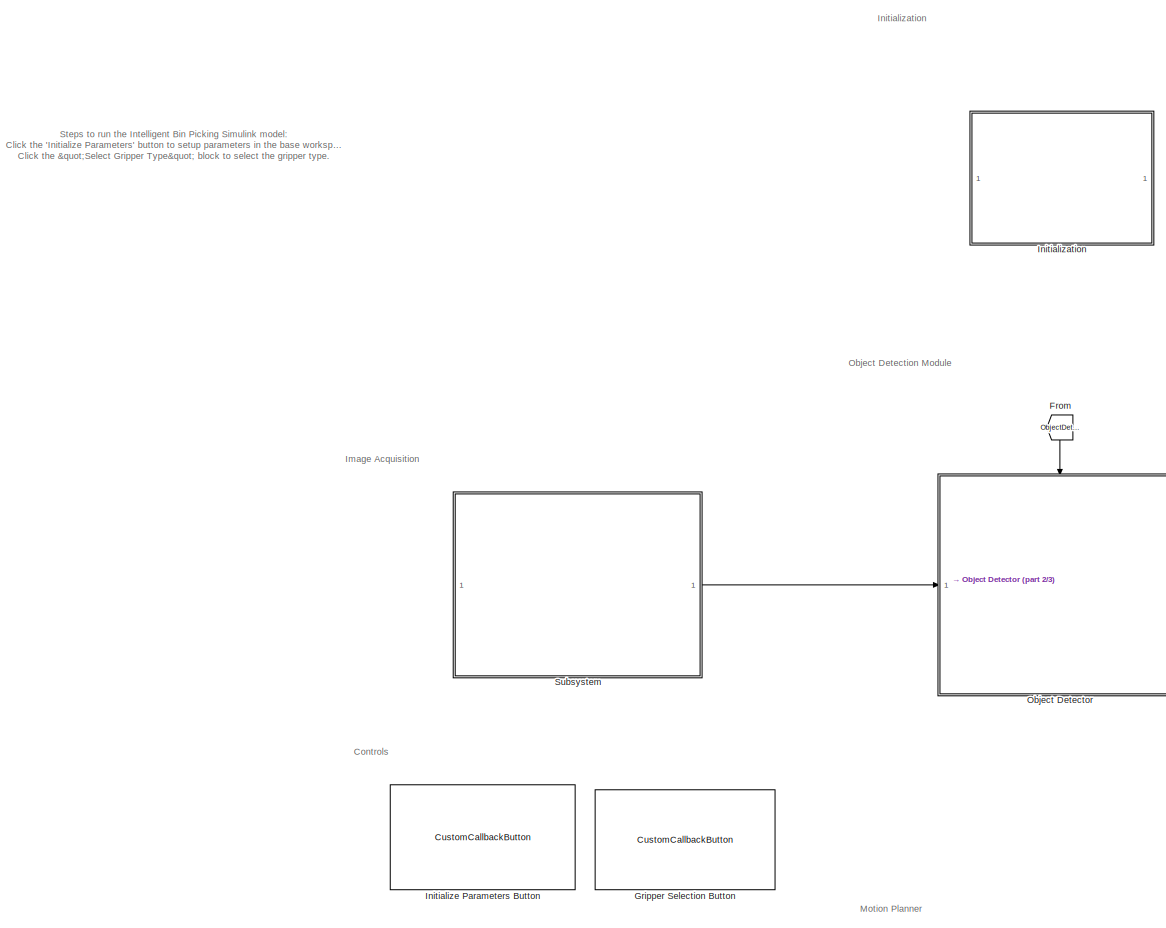
[diagram: root canvas - part 1/3, middle left region]
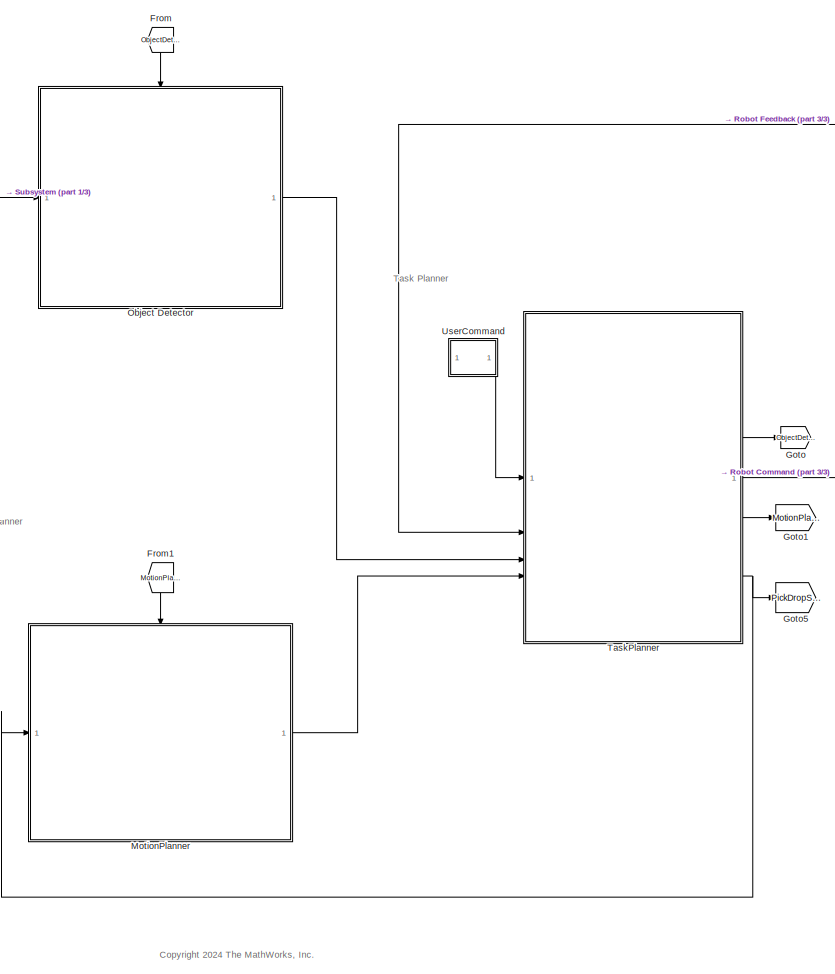
[diagram: root canvas - part 2/3, central region]
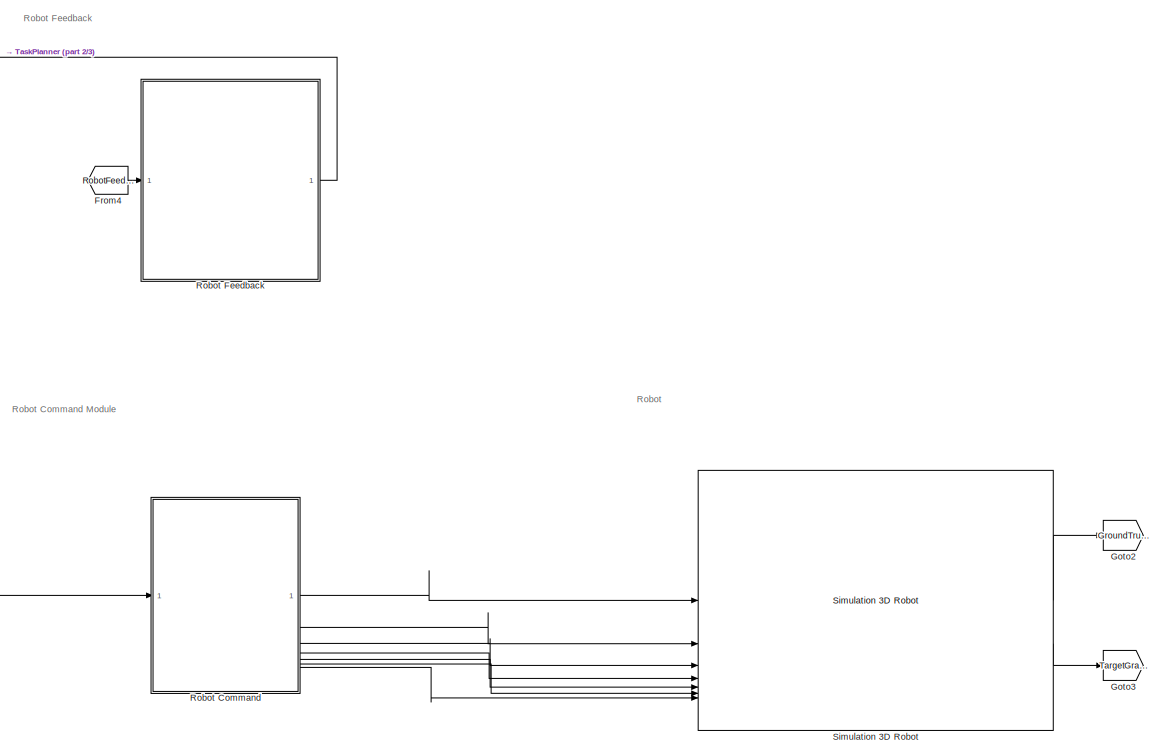
[diagram: root canvas - part 3/3, middle right region]
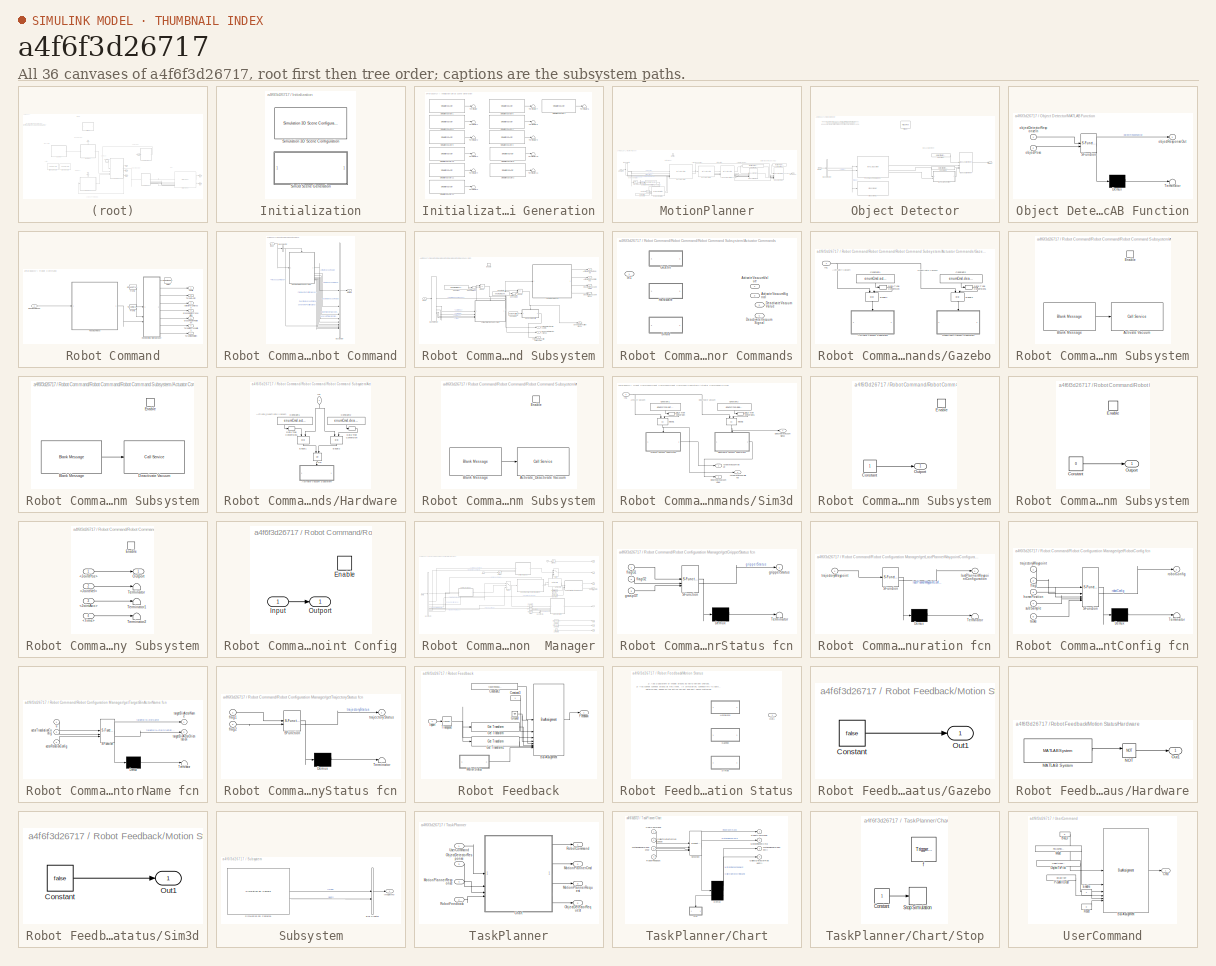
[diagram: thumbnail index - all 36 canvases of the model, root first then tree order]
MODEL slx_a4f6f3d26717
KIND model
CONFIG AbsTol = auto
CONFIG EnableMultiTasking = off
CONFIG FixedStep = 0.05
CONFIG MaxStep = auto
CONFIG MinStep = auto
CONFIG PreLoadFcn = initRobotModelParam;
CONFIG RelTol = 1e-3
CONFIG SampleTimeConstraint = Unconstrained
CONFIG SolverName = FixedStepAuto
CONFIG StartTime = 0.0
CONFIG StopTime = 200
WORKSPACE source: mxarray member
WORKSPACE SL_ROS_VariableLengthArrays_MaxSizes: object (value not decoded)
BLOCK [From] From
  GotoTag = ObjectDetectorRequest_GoTo
  NameLocation = left
BLOCK [From] From1
  GotoTag = MotionPlanner_GoTo
  NameLocation = left
BLOCK [From] From4
  GotoTag = RobotFeedback
  TagVisibility = global
BLOCK [Goto] Goto
  GotoTag = ObjectDetectorRequest_GoTo
  IconDisplay = Signal name
BLOCK [Goto] Goto1
  GotoTag = MotionPlanner_GoTo
  IconDisplay = Signal name
BLOCK [Goto] Goto2
  GotoTag = GroundTruthConfig
  TagVisibility = global
BLOCK [Goto] Goto3
  GotoTag = TargetGraspGroundTruth
  TagVisibility = global
BLOCK [Goto] Goto5
  GotoTag = PickDropStatus
  TagVisibility = global
BLOCK [CustomCallbackButton] Gripper Selection Button
  Configuration = {"components":[{"name":"BackgroundImageComponent","settings":{"image":{"size":[0,0],"src":"default","srcOrientation":"Right"},"position":[0,0,1,1]}},{"name":"ButtonStateComponent","settings":{"buttonType":"momentary","clickFcn":"getGripperType;\nfprintf('Loading Robot Model and Parameters...');\nfprintf('\\n');\nclear rbt ur5e;\nrbt = loadrobot('universalUR5e','DataFormat','row');\nur5e = exampleH...<+2447ch>
  CustomBackgroundColor = {"color":[0.6196078431372549,0.8392156862745098,0.9490196078431372],"show":true}
BLOCK [SubSystem] Initialization
  Priority = 0
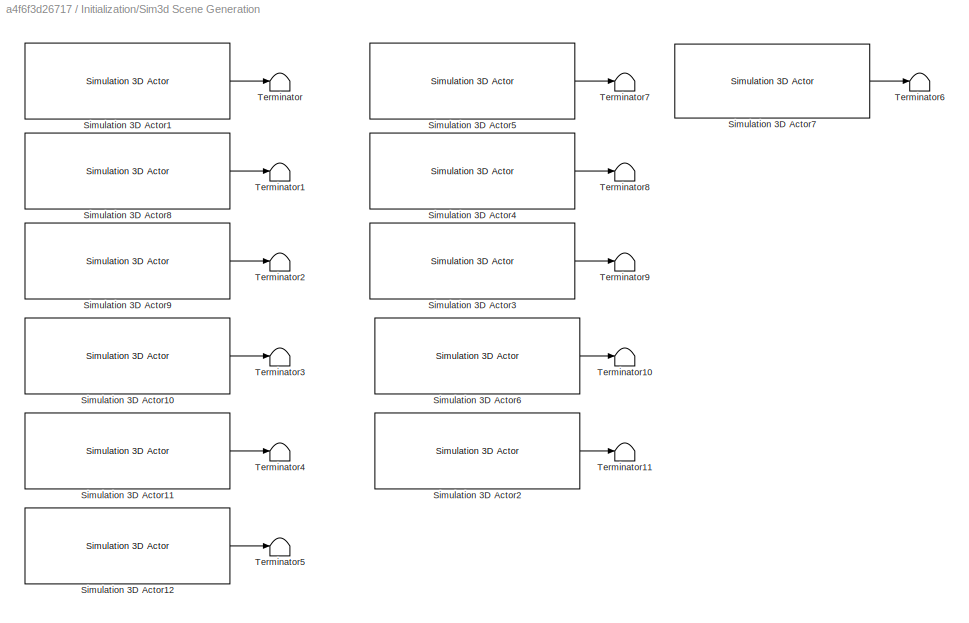
BLOCK [SubSystem] Initialization/Sim3d Scene Generation
BLOCK [Reference] Initialization/Sim3d Scene Generation/Simulation 3D Actor1  REF=sim3dlib/Simulation 3D Actor
  LibrarySourceBlock = sl3dlib/Simulation 3D/Simulation 3D Actor
  SourceBlock = sim3dlib/Simulation 3D Actor
  SourceType = Simulation 3D Actor
BLOCK [Reference] Initialization/Sim3d Scene Generation/Simulation 3D Actor10  REF=sim3dlib/Simulation 3D Actor
  LibrarySourceBlock = sl3dlib/Simulation 3D/Simulation 3D Actor
  SourceBlock = sim3dlib/Simulation 3D Actor
  SourceType = Simulation 3D Actor
BLOCK [Reference] Initialization/Sim3d Scene Generation/Simulation 3D Actor11  REF=sim3dlib/Simulation 3D Actor
  LibrarySourceBlock = sl3dlib/Simulation 3D/Simulation 3D Actor
  SourceBlock = sim3dlib/Simulation 3D Actor
  SourceType = Simulation 3D Actor
BLOCK [Reference] Initialization/Sim3d Scene Generation/Simulation 3D Actor12  REF=sim3dlib/Simulation 3D Actor
  LibrarySourceBlock = sl3dlib/Simulation 3D/Simulation 3D Actor
  SourceBlock = sim3dlib/Simulation 3D Actor
  SourceType = Simulation 3D Actor
BLOCK [Reference] Initialization/Sim3d Scene Generation/Simulation 3D Actor2  REF=sim3dlib/Simulation 3D Actor
  LibrarySourceBlock = sl3dlib/Simulation 3D/Simulation 3D Actor
  SourceBlock = sim3dlib/Simulation 3D Actor
  SourceType = Simulation 3D Actor
BLOCK [Reference] Initialization/Sim3d Scene Generation/Simulation 3D Actor3  REF=sim3dlib/Simulation 3D Actor
  LibrarySourceBlock = sl3dlib/Simulation 3D/Simulation 3D Actor
  SourceBlock = sim3dlib/Simulation 3D Actor
  SourceType = Simulation 3D Actor
BLOCK [Reference] Initialization/Sim3d Scene Generation/Simulation 3D Actor4  REF=sim3dlib/Simulation 3D Actor
  LibrarySourceBlock = sl3dlib/Simulation 3D/Simulation 3D Actor
  SourceBlock = sim3dlib/Simulation 3D Actor
  SourceType = Simulation 3D Actor
BLOCK [Reference] Initialization/Sim3d Scene Generation/Simulation 3D Actor5  REF=sim3dlib/Simulation 3D Actor
  LibrarySourceBlock = sl3dlib/Simulation 3D/Simulation 3D Actor
  SourceBlock = sim3dlib/Simulation 3D Actor
  SourceType = Simulation 3D Actor
BLOCK [Reference] Initialization/Sim3d Scene Generation/Simulation 3D Actor6  REF=sim3dlib/Simulation 3D Actor
  LibrarySourceBlock = sl3dlib/Simulation 3D/Simulation 3D Actor
  SourceBlock = sim3dlib/Simulation 3D Actor
  SourceType = Simulation 3D Actor
BLOCK [Reference] Initialization/Sim3d Scene Generation/Simulation 3D Actor7  REF=sim3dlib/Simulation 3D Actor
  LibrarySourceBlock = sl3dlib/Simulation 3D/Simulation 3D Actor
  SourceBlock = sim3dlib/Simulation 3D Actor
  SourceType = Simulation 3D Actor
BLOCK [Reference] Initialization/Sim3d Scene Generation/Simulation 3D Actor8  REF=sim3dlib/Simulation 3D Actor
  LibrarySourceBlock = sl3dlib/Simulation 3D/Simulation 3D Actor
  SourceBlock = sim3dlib/Simulation 3D Actor
  SourceType = Simulation 3D Actor
BLOCK [Reference] Initialization/Sim3d Scene Generation/Simulation 3D Actor9  REF=sim3dlib/Simulation 3D Actor
  LibrarySourceBlock = sl3dlib/Simulation 3D/Simulation 3D Actor
  SourceBlock = sim3dlib/Simulation 3D Actor
  SourceType = Simulation 3D Actor
BLOCK [Terminator] Initialization/Sim3d Scene Generation/Terminator
BLOCK [Terminator] Initialization/Sim3d Scene Generation/Terminator1
BLOCK [Terminator] Initialization/Sim3d Scene Generation/Terminator10
BLOCK [Terminator] Initialization/Sim3d Scene Generation/Terminator11
BLOCK [Terminator] Initialization/Sim3d Scene Generation/Terminator2
BLOCK [Terminator] Initialization/Sim3d Scene Generation/Terminator3
BLOCK [Terminator] Initialization/Sim3d Scene Generation/Terminator4
BLOCK [Terminator] Initialization/Sim3d Scene Generation/Terminator5
BLOCK [Terminator] Initialization/Sim3d Scene Generation/Terminator6
BLOCK [Terminator] Initialization/Sim3d Scene Generation/Terminator7
BLOCK [Terminator] Initialization/Sim3d Scene Generation/Terminator8
BLOCK [Terminator] Initialization/Sim3d Scene Generation/Terminator9
BLOCK [Reference] Initialization/Simulation 3D Scene Configuration  REF=sim3dlib/Simulation 3D Scene Configuration
  LibrarySourceBlock = sl3dlib/Simulation 3D/Simulation 3D Scene Configuration
  Priority = 0
  SourceBlock = sim3dlib/Simulation 3D Scene Configuration
  SourceType = Simulation 3D Scene Configuration
BLOCK [CustomCallbackButton] Initialize Parameters Button
  Configuration = {"components":[{"name":"BackgroundImageComponent","settings":{"image":{"size":[0,0],"src":"default","srcOrientation":"Right"},"position":[0,0,1,1]}},{"name":"ButtonStateComponent","settings":{"buttonType":"momentary","clickFcn":"%%\ninitRobotModelParam;\ndisp('*******************************************************');\ndisp('Parameters Initialized')","onValue":1,"position":[0,0,1,1],"pressDelay":"...<+2173ch>
  CustomBackgroundColor = {"color":[0.6196078431372549,0.8392156862745098,0.9490196078431372],"show":true}
BLOCK [SubSystem] MotionPlanner
BLOCK [BusAssignment] MotionPlanner/Bus Assignment
  AssignedSignals = RequestID,Status,JointTrajectory,IsPosValid,IsVelValid,IsAccValid
BLOCK [BusAssignment] MotionPlanner/Bus Assignment1
  AssignedSignals = NumPoints,Time,JointPos,JointVel,JointAcc
BLOCK [BusSelector] MotionPlanner/Bus Selector
  OutputSignals = RequestID,Tasks,InitialPositions,NumObstacleObjects,ObstacleObjects
BLOCK [BusSelector] MotionPlanner/Bus Selector1
  OutputSignals = eulZYX,p
BLOCK [Inport] MotionPlanner/Command
  OutDataTypeStr = Bus: BUS_motion_planner_cmd
BLOCK [Constant] MotionPlanner/Constant
  NameLocation = top
  OutDataTypeStr = Bus: BUS_motion_planner_response
  Value = motionPlannerResponseInitValue
BLOCK [Constant] MotionPlanner/Constant1
  NameLocation = top
  OutDataTypeStr = Bus: BUS_joint_trajectory
  Value = motionPlannerResponseInitValue.JointTrajectory
BLOCK [Constant] MotionPlanner/Constant2
  Value = [1 1 1 1 1 1]
BLOCK [Constant] MotionPlanner/Constant3
  Value = homePosition
BLOCK [Reference] MotionPlanner/Coordinate Transformation Conversion  REF=robotcorelib/Coordinate Transformation Conversion
  LibrarySourceBlock = robotutilslib/Coordinate Transformation Conversion
  SourceBlock = robotcorelib/Coordinate Transformation Conversion
  SourceType = robotics.slcore.internal.block.CoordinateTransformationConversion
BLOCK [Reference] MotionPlanner/Inverse Kinematics  REF=robotmaniplib/Inverse Kinematics
  SourceBlock = robotmaniplib/Inverse Kinematics
  SourceType = Inverse Kinematics
BLOCK [MATLABSystem] MotionPlanner/MATLAB System
  BinCenterPosition = binCenterPosition
  BinHeight = binHeight
  BinLength = binLength
  BinRotation = binRotation
  BinWidth = binWidth
  GripperType = gripperType
  HomePosition = retractHomePosition
  IsMEXed = off
  MaskDisplay = disp('MotionPlannerCHOMP');\nport_label('input',1,'requestID');\nport_label('input',2,'tasks');\nport_label('input',3,'q0');\nport_label('input',4,'numObstacles');\nport_label('input',5,'obstacles');\nport_label('input',6,'configSoln');\nport_label('input',7,'configSolnInfo');\nport_label('output',1,'reqID');\nport_label('output',2,'path');
  MaskType = MotionPlannerCHOMP
  SimulateUsing = Interpreted execution
  System = MotionPlannerCHOMP
  Target = targetEnv
BLOCK [MATLABSystem] MotionPlanner/MATLAB System1
  AccelLimits = accellimits
  MaskDisplay = disp('Contopptraj');\nport_label('input',1,'planPath');\nport_label('output',1,'q');\nport_label('output',2,'qd');\nport_label('output',3,'qdd');\nport_label('output',4,'t');
  MaskType = Contopptraj
  NumSamples = 50
  SimulateUsing = Interpreted execution
  System = Contopptraj
  VelocityLimits = vellimits
BLOCK [MATLABSystem] MotionPlanner/MATLAB System2
  MaskDisplay = disp('Interpolation');\nport_label('input',1,'q');\nport_label('input',2,'qd');\nport_label('input',3,'qdd');\nport_label('input',4,'t');\nport_label('output',1,'status');\nport_label('output',2,'numPoints');\nport_label('output',3,'time');\nport_label('output',4,'jointPos');\nport_label('output',5,'jointVel');\nport_label('output',6,'jointAcc');\nport_label('output',7,'isValid');
  MaskType = Interpolation
  MaxNumPoints = maxNumPoints
  SimulateUsing = Code generation
  System = Interpolation
  trajectorySampleTime = 1 / 400
BLOCK [Outport] MotionPlanner/Response
  InitialOutput = motionPlannerResponseInitValue
  OutDataTypeStr = Bus: BUS_motion_planner_response
  VectorParamsAs1DForOutWhenUnconnected = off
BLOCK [Selector] MotionPlanner/Selector
  IndexOptions = Index vector (dialog)
  Indices = 1
  InputPortWidth = 20
  OutputSizes = 1
BLOCK [TriggerPort] MotionPlanner/function
  PortDimensions = 1
  StatesWhenEnabling = held
  TriggerType = function-call
  VariantControl = Variant
BLOCK [SubSystem] Object Detector
  TreatAsAtomicUnit = on
BLOCK [BusAssignment] Object Detector/Bus Assignment
  AssignedSignals = Status,NumObjects,Objects
BLOCK [BusSelector] Object Detector/Bus Selector
  OutputSignals = Image,Depth
BLOCK [Constant] Object Detector/Constant
  OutDataTypeStr = Bus: BUS_object_detector_response
  Value = objectDetectorResponseInitValue
BLOCK [Constant] Object Detector/Constant1
  NameLocation = top
  OutDataTypeStr = Bus: BUS_object_detector_response
  Value = objectDetectorResponseInitValue
BLOCK [Inport] Object Detector/Inport
BLOCK [SubSystem] Object Detector/MATLAB Function
  ErrorFcn = Stateflow.Translate.translate
  LibrarySourceBlock = simulink/User-Defined\nFunctions/MATLAB Function
  PermitHierarchicalResolution = ExplicitOnly
  SFBlockType = MATLAB Function
  TreatAsAtomicUnit = on
BLOCK [Demux] Object Detector/MATLAB Function/ Demux 
  Outputs = 1
BLOCK [S-Function] Object Detector/MATLAB Function/ SFunction 
  EnableBusSupport = on
  FunctionName = sf_sfun
  PortCounts = [2 2]
  SFcnIsStateOwnerBlock = off
  SFunctionDeploymentMode = off
  Tag = Stateflow S-Function 5
BLOCK [Terminator] Object Detector/MATLAB Function/ Terminator 
BLOCK [Inport] Object Detector/MATLAB Function/objectDetectorResponseIn
BLOCK [Inport] Object Detector/MATLAB Function/objectPose
  Port = 2
BLOCK [Outport] Object Detector/MATLAB Function/objectResponseOut
BLOCK [Outport] Object Detector/Output
BLOCK [MATLABSystem] Object Detector/PoseMaskRCNNModel
  BinOrientation = binOrientation
  CameraLoc = camera_loc
  CameraRot = camera_rot
  ExecutionEnvironment = gpu
  Intrinsics = cameraIntrinsics( [ 750, 750 ], [ 640, 360 ], [ 720, 1280 ], "RadialDistortion", [ 0, 0 ], "TangentialDistortion", [ 0, 0 ], "Skew", 0 )
  MaskDisplay = disp('PoseMaskRCNNModel');\nport_label('input',1,'imRGB');\nport_label('input',2,'imDepth');\nport_label('output',1,'status');\nport_label('output',2,'numObjects');\nport_label('output',3,'objectPose');
  MaskType = PoseMaskRCNNModel
  MaxBinDistance = maxBinDistance
  MaxDepth = maxDepth
  MaxObjectDectection = maxObjectDetection
  NetName = resnet50-pvc-parts
  RobotOffset = robotInitialBaseTranslation
  System = PoseMaskRCNNModel
  TargetBinaryMask = targetAreaMask
  Threshold = predictionConfidenceScore
BLOCK [TriggerPort] Object Detector/Trigger
  StatesWhenEnabling = held
  TriggerType = function-call
  VariantControl = (inherit)
BLOCK [VideoViewer] Object Detector/Video Viewer
  FigPos = [345 622 589.333333333333 526]
  ScopeSpecificationString = vipscopes.VideoViewerScopeCfg('CurrentConfiguration', extmgr.ConfigurationSet(extmgr.Configuration('Core','General UI',true,'ShowMainToolbar',false,'ShowPlaybackToolbar',false),extmgr.Configuration('Core','Source UI',true),extmgr.Configuration('Sources','WiredSimulink',true),extmgr.Configuration('Visuals','Video',true),extmgr.Configuration('Tools','Image Navigation Tools',true),extmgr.Configuratio...<+165ch>
  colormapValue = gray(256)
BLOCK [SubSystem] Robot Command
BLOCK [Outport] Robot Command/ActivateTargetGrasp
  Port = 3
BLOCK [Outport] Robot Command/Config
BLOCK [From] Robot Command/From2
  GotoTag = GroundTruthConfig
  TagVisibility = global
BLOCK [From] Robot Command/From3
  GotoTag = TargetGraspGroundTruth
  TagVisibility = global
BLOCK [Goto] Robot Command/Goto4
  GotoTag = RobotFeedback
  TagVisibility = global
BLOCK [Outport] Robot Command/GraspRegionRotation
  Port = 5
BLOCK [Outport] Robot Command/GraspRegionTranslation
  Port = 4
BLOCK [SubSystem] Robot Command/Robot Command
BLOCK [BusCreator] Robot Command/Robot Command/Bus Creator
  DisplayOption = bar
  InheritFromInputs = on
  Inputs = 9
BLOCK [BusSelector] Robot Command/Robot Command/Bus Selector
  OutputSignals = ProcessCommand
BLOCK [Inport] Robot Command/Robot Command/Input
BLOCK [Outport] Robot Command/Robot Command/Outport
BLOCK [SubSystem] Robot Command/Robot Command/Robot Command Subsystem
  TreatAsAtomicUnit = on
BLOCK [Outport] Robot Command/Robot Command/Robot Command Subsystem/ActivateVacuumSignal
  Port = 2
BLOCK [Outport] Robot Command/Robot Command/Robot Command Subsystem/ActivateVacuumValue
BLOCK [SubSystem] Robot Command/Robot Command/Robot Command Subsystem/Actuator Commands
  Variant = on
BLOCK [Outport] Robot Command/Robot Command/Robot Command Subsystem/Actuator Commands/ActivateVacuumSignal
  Port = 2
BLOCK [Outport] Robot Command/Robot Command/Robot Command Subsystem/Actuator Commands/ActivateVacuumValue
BLOCK [Outport] Robot Command/Robot Command/Robot Command Subsystem/Actuator Commands/DeactivateVacuumSignal
  Port = 4
BLOCK [Outport] Robot Command/Robot Command/Robot Command Subsystem/Actuator Commands/DeactivateVacuumValue
  Port = 3
BLOCK [SubSystem] Robot Command/Robot Command/Robot Command Subsystem/Actuator Commands/Gazebo
  VariantControl = targetEnv == TargetEnvs.Gazebo
BLOCK [SubSystem] Robot Command/Robot Command/Robot Command Subsystem/Actuator Commands/Gazebo/Activate Vacuum Subsystem
BLOCK [Reference] Robot Command/Robot Command/Robot Command Subsystem/Actuator Commands/Gazebo/Activate Vacuum Subsystem/Activate Vacuum  REF=robotlib/Call Service
  SourceBlock = robotlib/Call Service
  SourceType = ROS Call Service
BLOCK [Reference] Robot Command/Robot Command/Robot Command Subsystem/Actuator Commands/Gazebo/Activate Vacuum Subsystem/Blank Message  REF=robotlib/Blank Message
  SourceBlock = robotlib/Blank Message
  SourceType = ROS Blank Message
BLOCK [EnablePort] Robot Command/Robot Command/Robot Command Subsystem/Actuator Commands/Gazebo/Activate Vacuum Subsystem/Enable
BLOCK [Constant] Robot Command/Robot Command/Robot Command Subsystem/Actuator Commands/Gazebo/Constant1
  NameLocation = left
  Value = enumCmd.activate_vacuum
BLOCK [Constant] Robot Command/Robot Command/Robot Command Subsystem/Actuator Commands/Gazebo/Constant2
  NameLocation = left
  Value = enumCmd.deactivate_vacuum
BLOCK [DataTypeConversion] Robot Command/Robot Command/Robot Command Subsystem/Actuator Commands/Gazebo/Data Type Conversion
  OutDataTypeStr = int32
  RndMeth = Floor
  SaturateOnIntegerOverflow = off
BLOCK [DataTypeConversion] Robot Command/Robot Command/Robot Command Subsystem/Actuator Commands/Gazebo/Data Type Conversion1
  OutDataTypeStr = int32
  RndMeth = Floor
  SaturateOnIntegerOverflow = off
BLOCK [SubSystem] Robot Command/Robot Command/Robot Command Subsystem/Actuator Commands/Gazebo/Deactivate Vacuum Subsystem
BLOCK [Reference] Robot Command/Robot Command/Robot Command Subsystem/Actuator Commands/Gazebo/Deactivate Vacuum Subsystem/Blank Message  REF=robotlib/Blank Message
  SourceBlock = robotlib/Blank Message
  SourceType = ROS Blank Message
BLOCK [Reference] Robot Command/Robot Command/Robot Command Subsystem/Actuator Commands/Gazebo/Deactivate Vacuum Subsystem/Deactivate Vacuum  REF=robotlib/Call Service
  SourceBlock = robotlib/Call Service
  SourceType = ROS Call Service
BLOCK [EnablePort] Robot Command/Robot Command/Robot Command Subsystem/Actuator Commands/Gazebo/Deactivate Vacuum Subsystem/Enable
BLOCK [RelationalOperator] Robot Command/Robot Command/Robot Command Subsystem/Actuator Commands/Gazebo/Equal1
  InputSameDT = off
  NameLocation = left
  Operator = ==
  OutDataTypeStr = boolean
  RndMeth = Simplest
BLOCK [RelationalOperator] Robot Command/Robot Command/Robot Command Subsystem/Actuator Commands/Gazebo/Equal2
  InputSameDT = off
  NameLocation = left
  Operator = ==
  OutDataTypeStr = boolean
  RndMeth = Simplest
BLOCK [Inport] Robot Command/Robot Command/Robot Command Subsystem/Actuator Commands/Gazebo/In1
BLOCK [SubSystem] Robot Command/Robot Command/Robot Command Subsystem/Actuator Commands/Hardware
  VariantControl = targetEnv == TargetEnvs.Hardware
BLOCK [SubSystem] Robot Command/Robot Command/Robot Command Subsystem/Actuator Commands/Hardware/Activate Vacuum Subsystem
BLOCK [Reference] Robot Command/Robot Command/Robot Command Subsystem/Actuator Commands/Hardware/Activate Vacuum Subsystem/Activate_Deactivate Vacuum  REF=robotlib/Call Service
  SourceBlock = robotlib/Call Service
  SourceType = ROS Call Service
BLOCK [Reference] Robot Command/Robot Command/Robot Command Subsystem/Actuator Commands/Hardware/Activate Vacuum Subsystem/Blank Message  REF=robotlib/Blank Message
  SourceBlock = robotlib/Blank Message
  SourceType = ROS Blank Message
BLOCK [EnablePort] Robot Command/Robot Command/Robot Command Subsystem/Actuator Commands/Hardware/Activate Vacuum Subsystem/Enable
BLOCK [Constant] Robot Command/Robot Command/Robot Command Subsystem/Actuator Commands/Hardware/Constant1
  NameLocation = left
  Value = enumCmd.activate_vacuum
BLOCK [Constant] Robot Command/Robot Command/Robot Command Subsystem/Actuator Commands/Hardware/Constant2
  NameLocation = left
  Value = enumCmd.deactivate_vacuum
BLOCK [DataTypeConversion] Robot Command/Robot Command/Robot Command Subsystem/Actuator Commands/Hardware/Data Type Conversion
  OutDataTypeStr = int32
  RndMeth = Floor
  SaturateOnIntegerOverflow = off
BLOCK [DataTypeConversion] Robot Command/Robot Command/Robot Command Subsystem/Actuator Commands/Hardware/Data Type Conversion1
  OutDataTypeStr = int32
  RndMeth = Floor
  SaturateOnIntegerOverflow = off
BLOCK [RelationalOperator] Robot Command/Robot Command/Robot Command Subsystem/Actuator Commands/Hardware/Equal1
  InputSameDT = off
  NameLocation = left
  Operator = ==
  OutDataTypeStr = boolean
  RndMeth = Simplest
BLOCK [RelationalOperator] Robot Command/Robot Command/Robot Command Subsystem/Actuator Commands/Hardware/Equal2
  InputSameDT = off
  NameLocation = left
  Operator = ==
  OutDataTypeStr = boolean
  RndMeth = Simplest
BLOCK [Inport] Robot Command/Robot Command/Robot Command Subsystem/Actuator Commands/Hardware/In1
  NameLocation = left
BLOCK [Logic] Robot Command/Robot Command/Robot Command Subsystem/Actuator Commands/Hardware/OR
  AllPortsSameDT = off
  NameLocation = left
  Operator = OR
  OutDataTypeStr = boolean
BLOCK [Inport] Robot Command/Robot Command/Robot Command Subsystem/Actuator Commands/In1
BLOCK [SubSystem] Robot Command/Robot Command/Robot Command Subsystem/Actuator Commands/Sim3d
  VariantControl = targetEnv == TargetEnvs.Sim3d
BLOCK [SubSystem] Robot Command/Robot Command/Robot Command Subsystem/Actuator Commands/Sim3d/Activate Vacuum Subsystem
BLOCK [Constant] Robot Command/Robot Command/Robot Command Subsystem/Actuator Commands/Sim3d/Activate Vacuum Subsystem/Constant
  OutDataTypeStr = boolean
BLOCK [EnablePort] Robot Command/Robot Command/Robot Command Subsystem/Actuator Commands/Sim3d/Activate Vacuum Subsystem/Enable
BLOCK [Outport] Robot Command/Robot Command/Robot Command Subsystem/Actuator Commands/Sim3d/Activate Vacuum Subsystem/Outport
BLOCK [Outport] Robot Command/Robot Command/Robot Command Subsystem/Actuator Commands/Sim3d/ActivateVacuumSignal
  Port = 2
BLOCK [Outport] Robot Command/Robot Command/Robot Command Subsystem/Actuator Commands/Sim3d/ActivateVacuumValue
BLOCK [Constant] Robot Command/Robot Command/Robot Command Subsystem/Actuator Commands/Sim3d/Constant1
  NameLocation = left
  Value = enumCmd.activate_vacuum
BLOCK [Constant] Robot Command/Robot Command/Robot Command Subsystem/Actuator Commands/Sim3d/Constant2
  NameLocation = left
  Value = enumCmd.deactivate_vacuum
BLOCK [DataTypeConversion] Robot Command/Robot Command/Robot Command Subsystem/Actuator Commands/Sim3d/Data Type Conversion
  OutDataTypeStr = int32
  RndMeth = Floor
  SaturateOnIntegerOverflow = off
BLOCK [DataTypeConversion] Robot Command/Robot Command/Robot Command Subsystem/Actuator Commands/Sim3d/Data Type Conversion1
  OutDataTypeStr = int32
  RndMeth = Floor
  SaturateOnIntegerOverflow = off
BLOCK [SubSystem] Robot Command/Robot Command/Robot Command Subsystem/Actuator Commands/Sim3d/Deactivate Vacuum Subsystem
BLOCK [Constant] Robot Command/Robot Command/Robot Command Subsystem/Actuator Commands/Sim3d/Deactivate Vacuum Subsystem/Constant
  OutDataTypeStr = boolean
  Value = 0
BLOCK [EnablePort] Robot Command/Robot Command/Robot Command Subsystem/Actuator Commands/Sim3d/Deactivate Vacuum Subsystem/Enable
BLOCK [Outport] Robot Command/Robot Command/Robot Command Subsystem/Actuator Commands/Sim3d/Deactivate Vacuum Subsystem/Outport
BLOCK [Outport] Robot Command/Robot Command/Robot Command Subsystem/Actuator Commands/Sim3d/DeactivateVacuumSignal
  Port = 4
BLOCK [Outport] Robot Command/Robot Command/Robot Command Subsystem/Actuator Commands/Sim3d/DeactivateVacuumValue
  Port = 3
BLOCK [RelationalOperator] Robot Command/Robot Command/Robot Command Subsystem/Actuator Commands/Sim3d/Equal1
  InputSameDT = off
  NameLocation = left
  Operator = ==
  OutDataTypeStr = boolean
  RndMeth = Simplest
BLOCK [RelationalOperator] Robot Command/Robot Command/Robot Command Subsystem/Actuator Commands/Sim3d/Equal2
  InputSameDT = off
  NameLocation = left
  Operator = ==
  OutDataTypeStr = boolean
  RndMeth = Simplest
BLOCK [Inport] Robot Command/Robot Command/Robot Command Subsystem/Actuator Commands/Sim3d/In1
BLOCK [BusSelector] Robot Command/Robot Command/Robot Command Subsystem/Bus Selector
  OutputSignals = CommandToProcess,JointTrajectory.JointPos,JointTrajectory.JointVel,JointTrajectory.JointAcc,JointTrajectory.Time
BLOCK [Constant] Robot Command/Robot Command/Robot Command Subsystem/Constant
  Value = enumCmd.precomputed_joint_trj
BLOCK [Constant] Robot Command/Robot Command/Robot Command Subsystem/Constant1
  Value = enumCmd.send_to_home
BLOCK [Constant] Robot Command/Robot Command/Robot Command Subsystem/Constant2
  Value = homePosition
BLOCK [DataTypeConversion] Robot Command/Robot Command/Robot Command Subsystem/Data Type Conversion
  OutDataTypeStr = int32
  RndMeth = Floor
  SaturateOnIntegerOverflow = off
BLOCK [DataTypeConversion] Robot Command/Robot Command/Robot Command Subsystem/Data Type Conversion1
  OutDataTypeStr = int32
  RndMeth = Floor
  SaturateOnIntegerOverflow = off
BLOCK [Outport] Robot Command/Robot Command/Robot Command Subsystem/DeactivateVacuumSignal
  Port = 7
BLOCK [Outport] Robot Command/Robot Command/Robot Command Subsystem/DeactivateVacuumValue
  Port = 3
BLOCK [EnablePort] Robot Command/Robot Command/Robot Command Subsystem/Enable
BLOCK [RelationalOperator] Robot Command/Robot Command/Robot Command Subsystem/Equal
  InputSameDT = off
  Operator = ==
  OutDataTypeStr = boolean
  RndMeth = Simplest
BLOCK [RelationalOperator] Robot Command/Robot Command/Robot Command Subsystem/Equal1
  InputSameDT = off
  Operator = ==
  OutDataTypeStr = boolean
  RndMeth = Simplest
BLOCK [SubSystem] Robot Command/Robot Command/Robot Command Subsystem/Follow Trajectory Subsystem
BLOCK [Inport] Robot Command/Robot Command/Robot Command Subsystem/Follow Trajectory Subsystem/<JointAcc>
  Port = 3
BLOCK [Inport] Robot Command/Robot Command/Robot Command Subsystem/Follow Trajectory Subsystem/<JointPos>
BLOCK [Inport] Robot Command/Robot Command/Robot Command Subsystem/Follow Trajectory Subsystem/<JointVel>
  Port = 2
BLOCK [Inport] Robot Command/Robot Command/Robot Command Subsystem/Follow Trajectory Subsystem/<Time>
  Port = 4
BLOCK [EnablePort] Robot Command/Robot Command/Robot Command Subsystem/Follow Trajectory Subsystem/Enable
BLOCK [Outport] Robot Command/Robot Command/Robot Command Subsystem/Follow Trajectory Subsystem/Outport
BLOCK [Terminator] Robot Command/Robot Command/Robot Command Subsystem/Follow Trajectory Subsystem/Terminator
BLOCK [Terminator] Robot Command/Robot Command/Robot Command Subsystem/Follow Trajectory Subsystem/Terminator1
BLOCK [Terminator] Robot Command/Robot Command/Robot Command Subsystem/Follow Trajectory Subsystem/Terminator2
BLOCK [Outport] Robot Command/Robot Command/Robot Command Subsystem/FollowHomePositionWaypoint
  Port = 6
BLOCK [Outport] Robot Command/Robot Command/Robot Command Subsystem/FollowTrajectoryWaypoints
  Port = 4
BLOCK [Inport] Robot Command/Robot Command/Robot Command Subsystem/Input
BLOCK [SubSystem] Robot Command/Robot Command/Robot Command Subsystem/Send Joint Config
  TreatAsAtomicUnit = on
BLOCK [EnablePort] Robot Command/Robot Command/Robot Command Subsystem/Send Joint Config/Enable
BLOCK [Inport] Robot Command/Robot Command/Robot Command Subsystem/Send Joint Config/Input
BLOCK [Outport] Robot Command/Robot Command/Robot Command Subsystem/Send Joint Config/Outport
BLOCK [Outport] Robot Command/Robot Command/Robot Command Subsystem/SendHomePositionSignal
  Port = 8
BLOCK [Outport] Robot Command/Robot Command/Robot Command Subsystem/SendJointTrajectorySignal
  Port = 5
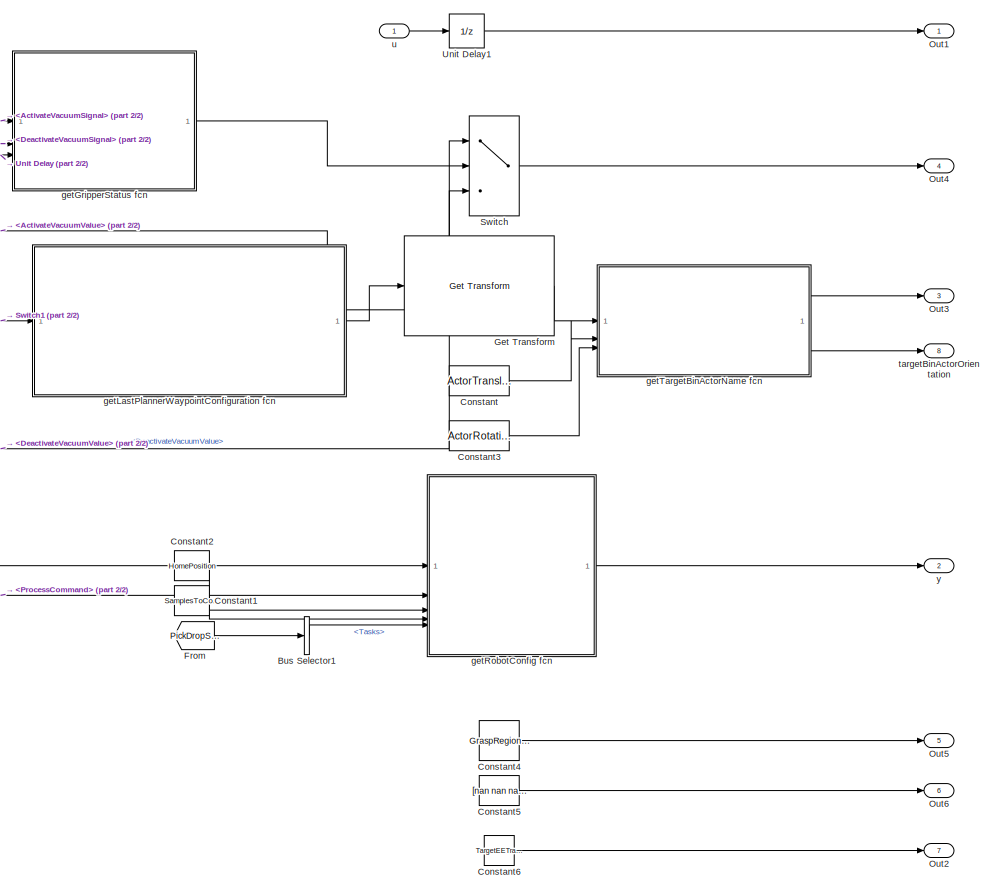
[diagram: Robot Command/Robot Configuration  Manager - part 1/2, right side, full height]
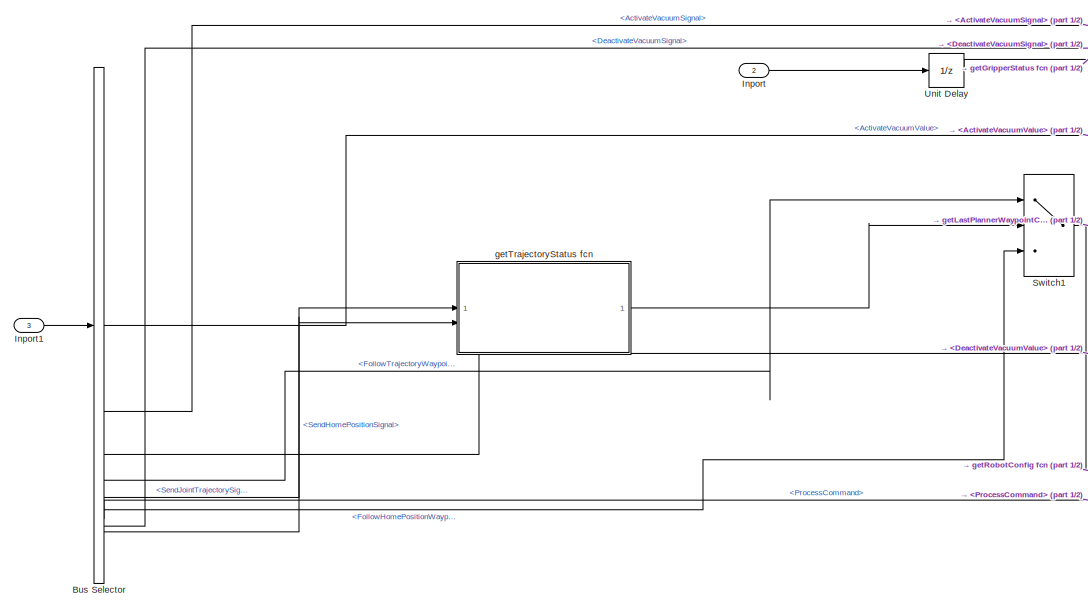
[diagram: Robot Command/Robot Configuration  Manager - part 2/2, middle left region]
BLOCK [SubSystem] Robot Command/Robot Configuration  Manager
BLOCK [BusSelector] Robot Command/Robot Configuration  Manager/Bus Selector
  OutputSignals = ActivateVacuumValue,ActivateVacuumSignal,DeactivateVacuumValue,FollowTrajectoryWaypoints,SendJointTrajectorySignal,FollowHomePositionWaypoint,ProcessCommand,DeactivateVacuumSignal,SendHomePositionSignal
BLOCK [BusSelector] Robot Command/Robot Configuration  Manager/Bus Selector1
  OutputSignals = Tasks
BLOCK [Constant] Robot Command/Robot Configuration  Manager/Constant
  Value = ActorTranslationConfig
BLOCK [Constant] Robot Command/Robot Configuration  Manager/Constant1
  Value = SamplesToConsider
BLOCK [Constant] Robot Command/Robot Configuration  Manager/Constant2
  Value = HomePosition
BLOCK [Constant] Robot Command/Robot Configuration  Manager/Constant3
  Value = ActorRotationConfig
BLOCK [Constant] Robot Command/Robot Configuration  Manager/Constant4
  Value = GraspRegionTranslation
BLOCK [Constant] Robot Command/Robot Configuration  Manager/Constant5
  Value = [nan nan nan]
BLOCK [Constant] Robot Command/Robot Configuration  Manager/Constant6
  Value = TargetEETranslation
BLOCK [From] Robot Command/Robot Configuration  Manager/From
  GotoTag = PickDropStatus
  TagVisibility = global
BLOCK [Reference] Robot Command/Robot Configuration  Manager/Get Transform  REF=robotmaniplib/Get Transform
  SourceBlock = robotmaniplib/Get Transform
  SourceType = Get Transform
BLOCK [Inport] Robot Command/Robot Configuration  Manager/Inport
  Port = 2
BLOCK [Inport] Robot Command/Robot Configuration  Manager/Inport1
  Port = 3
BLOCK [Outport] Robot Command/Robot Configuration  Manager/Out1
BLOCK [Outport] Robot Command/Robot Configuration  Manager/Out2
  Port = 7
BLOCK [Outport] Robot Command/Robot Configuration  Manager/Out3
  Port = 3
BLOCK [Outport] Robot Command/Robot Configuration  Manager/Out4
  Port = 4
BLOCK [Outport] Robot Command/Robot Configuration  Manager/Out5
  Port = 5
BLOCK [Outport] Robot Command/Robot Configuration  Manager/Out6
  Port = 6
BLOCK [Switch] Robot Command/Robot Configuration  Manager/Switch
  Criteria = u2 > Threshold
  InputSameDT = off
  SaturateOnIntegerOverflow = off
BLOCK [Switch] Robot Command/Robot Configuration  Manager/Switch1
  AllowDiffInputSizes = on
  Criteria = u2 > Threshold
  InputSameDT = off
  SaturateOnIntegerOverflow = off
BLOCK [UnitDelay] Robot Command/Robot Configuration  Manager/Unit Delay
  HasFrameUpgradeWarning = on
  InitialCondition = false
  SampleTime = -1
BLOCK [UnitDelay] Robot Command/Robot Configuration  Manager/Unit Delay1
  HasFrameUpgradeWarning = on
  InitialCondition = homePosition
  SampleTime = -1
BLOCK [SubSystem] Robot Command/Robot Configuration  Manager/getGripperStatus fcn
  ErrorFcn = Stateflow.Translate.translate
  PermitHierarchicalResolution = ExplicitOnly
  SFBlockType = MATLAB Function
  TreatAsAtomicUnit = on
BLOCK [Demux] Robot Command/Robot Configuration  Manager/getGripperStatus fcn/ Demux 
  Outputs = 1
BLOCK [S-Function] Robot Command/Robot Configuration  Manager/getGripperStatus fcn/ SFunction 
  EnableBusSupport = on
  FunctionName = sf_sfun
  PortCounts = [3 2]
  SFcnIsStateOwnerBlock = off
  SFunctionDeploymentMode = off
  Tag = Stateflow S-Function 3
BLOCK [Terminator] Robot Command/Robot Configuration  Manager/getGripperStatus fcn/ Terminator 
BLOCK [Inport] Robot Command/Robot Configuration  Manager/getGripperStatus fcn/flagG1
BLOCK [Inport] Robot Command/Robot Configuration  Manager/getGripperStatus fcn/flagG2
  Port = 2
BLOCK [Inport] Robot Command/Robot Configuration  Manager/getGripperStatus fcn/graspGT
  Port = 3
BLOCK [Outport] Robot Command/Robot Configuration  Manager/getGripperStatus fcn/gripperStatus
BLOCK [SubSystem] Robot Command/Robot Configuration  Manager/getLastPlannerWaypointConfiguration fcn
  ErrorFcn = Stateflow.Translate.translate
  PermitHierarchicalResolution = ExplicitOnly
  SFBlockType = MATLAB Function
  TreatAsAtomicUnit = on
BLOCK [Demux] Robot Command/Robot Configuration  Manager/getLastPlannerWaypointConfiguration fcn/ Demux 
  Outputs = 1
BLOCK [S-Function] Robot Command/Robot Configuration  Manager/getLastPlannerWaypointConfiguration fcn/ SFunction 
  EnableBusSupport = on
  FunctionName = sf_sfun
  PortCounts = [1 2]
  SFcnIsStateOwnerBlock = off
  SFunctionDeploymentMode = off
  Tag = Stateflow S-Function 1
BLOCK [Terminator] Robot Command/Robot Configuration  Manager/getLastPlannerWaypointConfiguration fcn/ Terminator 
BLOCK [Outport] Robot Command/Robot Configuration  Manager/getLastPlannerWaypointConfiguration fcn/lastPlannerWaypointConfiguration
BLOCK [Inport] Robot Command/Robot Configuration  Manager/getLastPlannerWaypointConfiguration fcn/trajectoryWaypoint
BLOCK [SubSystem] Robot Command/Robot Configuration  Manager/getRobotConfig fcn
  ErrorFcn = Stateflow.Translate.translate
  PermitHierarchicalResolution = ExplicitOnly
  SFBlockType = MATLAB Function
  TreatAsAtomicUnit = on
BLOCK [Demux] Robot Command/Robot Configuration  Manager/getRobotConfig fcn/ Demux 
  Outputs = 1
BLOCK [S-Function] Robot Command/Robot Configuration  Manager/getRobotConfig fcn/ SFunction 
  EnableBusSupport = on
  FunctionName = sf_sfun
  PortCounts = [5 2]
  SFcnIsStateOwnerBlock = off
  SFunctionDeploymentMode = off
  Tag = Stateflow S-Function 6
BLOCK [Terminator] Robot Command/Robot Configuration  Manager/getRobotConfig fcn/ Terminator 
BLOCK [Inport] Robot Command/Robot Configuration  Manager/getRobotConfig fcn/flag
  Port = 2
BLOCK [Inport] Robot Command/Robot Configuration  Manager/getRobotConfig fcn/homePosition
  Port = 3
BLOCK [Outport] Robot Command/Robot Configuration  Manager/getRobotConfig fcn/robotConfig
BLOCK [Inport] Robot Command/Robot Configuration  Manager/getRobotConfig fcn/subSample
  Port = 4
BLOCK [Inport] Robot Command/Robot Configuration  Manager/getRobotConfig fcn/tasks
  Port = 5
BLOCK [Inport] Robot Command/Robot Configuration  Manager/getRobotConfig fcn/trajectoryWaypoint
BLOCK [SubSystem] Robot Command/Robot Configuration  Manager/getTargetBinActorName fcn
  ErrorFcn = Stateflow.Translate.translate
  PermitHierarchicalResolution = ExplicitOnly
  SFBlockType = MATLAB Function
  TreatAsAtomicUnit = on
BLOCK [Demux] Robot Command/Robot Configuration  Manager/getTargetBinActorName fcn/ Demux 
  Outputs = 1
BLOCK [S-Function] Robot Command/Robot Configuration  Manager/getTargetBinActorName fcn/ SFunction 
  EnableBusSupport = on
  FunctionName = sf_sfun
  PortCounts = [3 3]
  SFcnIsStateOwnerBlock = off
  SFunctionDeploymentMode = off
  Tag = Stateflow S-Function 7
BLOCK [Terminator] Robot Command/Robot Configuration  Manager/getTargetBinActorName fcn/ Terminator 
BLOCK [Inport] Robot Command/Robot Configuration  Manager/getTargetBinActorName fcn/actorRotationConfig
  Port = 3
BLOCK [Inport] Robot Command/Robot Configuration  Manager/getTargetBinActorName fcn/actorTranslationConfig
  Port = 2
BLOCK [Outport] Robot Command/Robot Configuration  Manager/getTargetBinActorName fcn/targetBinActorName
BLOCK [Outport] Robot Command/Robot Configuration  Manager/getTargetBinActorName fcn/targetBinActorOrientation
  Port = 2
BLOCK [Inport] Robot Command/Robot Configuration  Manager/getTargetBinActorName fcn/u
BLOCK [SubSystem] Robot Command/Robot Configuration  Manager/getTrajectoryStatus fcn
  ErrorFcn = Stateflow.Translate.translate
  PermitHierarchicalResolution = ExplicitOnly
  SFBlockType = MATLAB Function
  TreatAsAtomicUnit = on
BLOCK [Demux] Robot Command/Robot Configuration  Manager/getTrajectoryStatus fcn/ Demux 
  Outputs = 1
BLOCK [S-Function] Robot Command/Robot Configuration  Manager/getTrajectoryStatus fcn/ SFunction 
  EnableBusSupport = on
  FunctionName = sf_sfun
  PortCounts = [2 2]
  SFcnIsStateOwnerBlock = off
  SFunctionDeploymentMode = off
  Tag = Stateflow S-Function 4
BLOCK [Terminator] Robot Command/Robot Configuration  Manager/getTrajectoryStatus fcn/ Terminator 
BLOCK [Inport] Robot Command/Robot Configuration  Manager/getTrajectoryStatus fcn/flag1
BLOCK [Inport] Robot Command/Robot Configuration  Manager/getTrajectoryStatus fcn/flag2
  Port = 2
BLOCK [Outport] Robot Command/Robot Configuration  Manager/getTrajectoryStatus fcn/trajectoryStatus
BLOCK [Outport] Robot Command/Robot Configuration  Manager/targetBinActorOrientation
  Port = 8
BLOCK [Inport] Robot Command/Robot Configuration  Manager/u
BLOCK [Outport] Robot Command/Robot Configuration  Manager/y
  Port = 2
BLOCK [Inport] Robot Command/RobotCommands
BLOCK [Outport] Robot Command/TargetEERotation
  Port = 7
BLOCK [Outport] Robot Command/TargetEETranslation
  Port = 6
BLOCK [Outport] Robot Command/TargetcActor
  Port = 2
BLOCK [SubSystem] Robot Feedback
BLOCK [BusAssignment] Robot Feedback/Bus Assignment
  AssignedSignals = IsValid,JointPos,JointVel,JointCurrent,TooltipTransform,RGBCameraTransform,IsMoving
BLOCK [Constant] Robot Feedback/Constant2
  OutDataTypeStr = Bus: BUS_robot_feedback
  Value = robotFeedbackInitValue
BLOCK [Constant] Robot Feedback/Constant3
  OutDataTypeStr = boolean
BLOCK [Outport] Robot Feedback/Feedback
  OutDataTypeStr = Bus: BUS_robot_feedback
  VectorParamsAs1DForOutWhenUnconnected = off
BLOCK [Reference] Robot Feedback/Get Transform  REF=robotmaniplib/Get Transform
  SourceBlock = robotmaniplib/Get Transform
  SourceType = Get Transform
BLOCK [Reference] Robot Feedback/Get Transform1  REF=robotmaniplib/Get Transform
  SourceBlock = robotmaniplib/Get Transform
  SourceType = Get Transform
BLOCK [Ground] Robot Feedback/Ground
BLOCK [Inport] Robot Feedback/Inport
BLOCK [SubSystem] Robot Feedback/Motion Status
  Variant = on
BLOCK [SubSystem] Robot Feedback/Motion Status/Gazebo
  VariantControl = targetEnv == TargetEnvs.Gazebo
BLOCK [Constant] Robot Feedback/Motion Status/Gazebo/Constant
  Value = false
BLOCK [Outport] Robot Feedback/Motion Status/Gazebo/Out1
BLOCK [SubSystem] Robot Feedback/Motion Status/Hardware
  VariantControl = targetEnv == TargetEnvs.Hardware
BLOCK [MATLABSystem] Robot Feedback/Motion Status/Hardware/MATLAB System
  MaskDisplay = disp('MotionStatusUR');\nport_label('output',1,'success');
  MaskType = MotionStatusUR
  ROSDeviceAddress = ROSDeviceAddress
  System = MotionStatusUR
BLOCK [Logic] Robot Feedback/Motion Status/Hardware/NOT
  AllPortsSameDT = off
  Operator = NOT
  OutDataTypeStr = boolean
BLOCK [Outport] Robot Feedback/Motion Status/Hardware/Out1
BLOCK [Outport] Robot Feedback/Motion Status/Out1
BLOCK [SubSystem] Robot Feedback/Motion Status/Sim3d
  VariantControl = targetEnv == TargetEnvs.Sim3d
BLOCK [Constant] Robot Feedback/Motion Status/Sim3d/Constant
  Value = false
BLOCK [Outport] Robot Feedback/Motion Status/Sim3d/Out1
BLOCK [Math] Robot Feedback/Transpose
  Operator = transpose
BLOCK [Reference] Simulation 3D Robot  REF=robotsim3dlib/Simulation 3D Robot
  SourceBlock = robotsim3dlib/Simulation 3D Robot
  SourceType = Simulation 3D Robot
BLOCK [SubSystem] Subsystem
BLOCK [BusCreator] Subsystem/Bus Creator
  DisplayOption = bar
  InheritFromInputs = on
  Inputs = 2
BLOCK [Outport] Subsystem/ImageInfo
BLOCK [Reference] Subsystem/Simulation 3D Camera1  REF=sim3dcameralib/Simulation 3D Camera
  LibrarySourceBlock = drivingsim3d/Simulation 3D Camera
  Priority = 1
  SourceBlock = sim3dcameralib/Simulation 3D Camera
  SourceType = Simulation 3D Camera
BLOCK [SubSystem] TaskPlanner
  SystemSampleTime = TaskPlannerSampleTime
  TreatAsAtomicUnit = on
BLOCK [SubSystem] TaskPlanner/Chart
  ErrorFcn = Stateflow.Translate.translate
  PermitHierarchicalResolution = ExplicitOnly
  SFBlockType = Chart
  TreatAsAtomicUnit = on
BLOCK [Demux] TaskPlanner/Chart/ Demux 
  Outputs = 3
BLOCK [S-Function] TaskPlanner/Chart/ SFunction 
  EnableBusSupport = on
  FunctionName = sf_sfun
  Parameters = binCenterPosition,isSingleDetection,maxVisionObjects,motionPlannerCmdInitValue,posTargetError,robotCommandInitValue,targetEnv
  PortCounts = [4 3]
  SFcnIsStateOwnerBlock = off
  SFunctionDeploymentMode = off
  Tag = Stateflow S-Function 9
BLOCK [Outport] TaskPlanner/Chart/MotionPlannerCmd
  Port = 2
  VectorParamsAs1DForOutWhenUnconnected = off
BLOCK [Outport] TaskPlanner/Chart/MotionPlannerRequest()
  Port = 3
  VectorParamsAs1DForOutWhenUnconnected = off
BLOCK [Inport] TaskPlanner/Chart/MotionPlannerResponse
  Port = 3
BLOCK [Outport] TaskPlanner/Chart/ObjectDetectorRequest()
  Port = 4
  VectorParamsAs1DForOutWhenUnconnected = off
BLOCK [Inport] TaskPlanner/Chart/ObjectDetectorResponse
  Port = 2
BLOCK [Outport] TaskPlanner/Chart/RobotCommand
  VectorParamsAs1DForOutWhenUnconnected = off
BLOCK [Inport] TaskPlanner/Chart/RobotFeedback
  Port = 4
BLOCK [SubSystem] TaskPlanner/Chart/Stop
  PreDeleteFcn = Stateflow.SLINSF.SimulinkMan.removePreDeleteFcn
  UndoDeleteFcn = Stateflow.SLINSF.SimulinkMan.restorePreDeleteFcn
BLOCK [Constant] TaskPlanner/Chart/Stop/Constant
BLOCK [Stop] TaskPlanner/Chart/Stop/Stop Simulation
BLOCK [TriggerPort] TaskPlanner/Chart/Stop/f
  CopyFcn = Stateflow.SLINSF.SimulinkMan.removeBlockPreDeleteFcn
  PreDeleteFcn = Stateflow.SLINSF.SimulinkMan.unsafePredeleteFcn
  StatesWhenEnabling = held
  TriggerType = function-call
  VariantControl = (inherit)
BLOCK [Inport] TaskPlanner/Chart/UserCommand
BLOCK [Outport] TaskPlanner/MotionPlannerCmd
  OutDataTypeStr = Bus: BUS_motion_planner_cmd
  Port = 4
  VectorParamsAs1DForOutWhenUnconnected = off
BLOCK [Outport] TaskPlanner/MotionPlannerRequest
  Port = 3
  VectorParamsAs1DForOutWhenUnconnected = off
BLOCK [Inport] TaskPlanner/MotionPlannerResponse
  Port = 4
BLOCK [Outport] TaskPlanner/ObjectDetectorRequest
  Port = 2
  VectorParamsAs1DForOutWhenUnconnected = off
BLOCK [Inport] TaskPlanner/ObjectDetectorResponse
  OutDataTypeStr = Bus: BUS_object_detector_response
  Port = 3
BLOCK [Outport] TaskPlanner/RobotCommand
  OutDataTypeStr = Bus: BUS_robot_command
  VectorParamsAs1DForOutWhenUnconnected = off
BLOCK [Inport] TaskPlanner/RobotFeedback
  OutDataTypeStr = Bus: BUS_robot_feedback
  Port = 2
BLOCK [Inport] TaskPlanner/UserCommand
BLOCK [SubSystem] UserCommand
BLOCK [BusAssignment] UserCommand/Bus Assignment
  AssignedSignals = Mode,PickSelectedObjectID,PickAllOrder,Enable,Reset
BLOCK [Constant] UserCommand/Bus_0
  OutDataTypeStr = Bus: BUS_user_command
  Value = 0
BLOCK [Outport] UserCommand/Cmd
  OutDataTypeStr = Bus: BUS_user_command
  VectorParamsAs1DForOutWhenUnconnected = off
BLOCK [Constant] UserCommand/Enable
  OutDataTypeStr = boolean
BLOCK [Constant] UserCommand/Mode
  OutDataTypeStr = Enum: PickAndPlaceModes
  Value = PickAndPlaceModes.PickAll
BLOCK [Constant] UserCommand/ObjectToPick
  Value = ObjectTypesID.X
BLOCK [Constant] UserCommand/PickAllOrder
  Value = pickAllOrder
BLOCK [Constant] UserCommand/Reset
  OutDataTypeStr = boolean
  Value = 0
ANNOTATION (root): Steps to run the Intelligent Bin Picking Simulink model: Click the ' Initialize Parameters ' button to setup parameters in the base workspace. ( While opening the model this will be automatically called as a model callback ) Click the " Select Gripper Type " block to select the gripper type.
ANNOTATION (root): Controls
ANNOTATION (root): <copyright redacted>
ANNOTATION (root): Image Acquisition
ANNOTATION (root): Initialization
ANNOTATION (root): Motion Planner
ANNOTATION (root): Object Detection Module
ANNOTATION (root): Robot
ANNOTATION (root): Robot Command Module
ANNOTATION (root): Robot Feedback
ANNOTATION (root): Task Planner
ANNOTATION MotionPlanner: Interpolation
ANNOTATION MotionPlanner: Inverse Kinematics
ANNOTATION MotionPlanner: Joint Trajectory Bus
ANNOTATION MotionPlanner: Motion Planner Response Bus
ANNOTATION MotionPlanner: Path Planner
ANNOTATION MotionPlanner: Trajectory Generator
ANNOTATION Object Detector: The object Detection Subsystem performs the following tasks: Read camera image data from a Sim3d Camera Use a object detector to obtain pose of the objects in the scene.
ANNOTATION Object Detector: Bus Assignment
ANNOTATION Robot Command/Robot Command/Robot Command Subsystem/Actuator Commands/Gazebo: Activate Vacuum
ANNOTATION Robot Command/Robot Command/Robot Command Subsystem/Actuator Commands/Gazebo: Deactivate Vacuum
ANNOTATION Robot Command/Robot Command/Robot Command Subsystem/Actuator Commands/Hardware: Activate_Deactivate Vacuum
ANNOTATION Robot Command/Robot Command/Robot Command Subsystem/Actuator Commands/Sim3d: Activate Vacuum
ANNOTATION Robot Command/Robot Command/Robot Command Subsystem/Actuator Commands/Sim3d: Deactivate Vacuum
ANNOTATION Robot Feedback/Motion Status: 1) Add Subsystem or Model blocks as valid variant choices. 2) You cannot connect blocks at this level. At simulation, connectivity is automatically determined, based on the active variant and port name matching.
LINE From1:1 -> MotionPlanner:trigger
LINE From4:1 -> Robot Feedback:1
LINE From:1 -> Object Detector:trigger
LINE Initialization/Sim3d Scene Generation/Simulation 3D Actor10:1 -> Initialization/Sim3d Scene Generation/Terminator3:1
LINE Initialization/Sim3d Scene Generation/Simulation 3D Actor11:1 -> Initialization/Sim3d Scene Generation/Terminator4:1
LINE Initialization/Sim3d Scene Generation/Simulation 3D Actor12:1 -> Initialization/Sim3d Scene Generation/Terminator5:1
LINE Initialization/Sim3d Scene Generation/Simulation 3D Actor1:1 -> Initialization/Sim3d Scene Generation/Terminator:1
LINE Initialization/Sim3d Scene Generation/Simulation 3D Actor2:1 -> Initialization/Sim3d Scene Generation/Terminator11:1
LINE Initialization/Sim3d Scene Generation/Simulation 3D Actor3:1 -> Initialization/Sim3d Scene Generation/Terminator9:1
LINE Initialization/Sim3d Scene Generation/Simulation 3D Actor4:1 -> Initialization/Sim3d Scene Generation/Terminator8:1
LINE Initialization/Sim3d Scene Generation/Simulation 3D Actor5:1 -> Initialization/Sim3d Scene Generation/Terminator7:1
LINE Initialization/Sim3d Scene Generation/Simulation 3D Actor6:1 -> Initialization/Sim3d Scene Generation/Terminator10:1
LINE Initialization/Sim3d Scene Generation/Simulation 3D Actor7:1 -> Initialization/Sim3d Scene Generation/Terminator6:1
LINE Initialization/Sim3d Scene Generation/Simulation 3D Actor8:1 -> Initialization/Sim3d Scene Generation/Terminator1:1
LINE Initialization/Sim3d Scene Generation/Simulation 3D Actor9:1 -> Initialization/Sim3d Scene Generation/Terminator2:1
LINE MotionPlanner/Bus Assignment1:1 -> MotionPlanner/Bus Assignment:4
LINE MotionPlanner/Bus Assignment:1 -> MotionPlanner/Response:1
LINE MotionPlanner/Bus Selector1:1 -> MotionPlanner/Coordinate Transformation Conversion:1
LINE MotionPlanner/Bus Selector1:2 -> MotionPlanner/Coordinate Transformation Conversion:2
LINE MotionPlanner/Bus Selector:1 -> MotionPlanner/MATLAB System:1
NET MotionPlanner/Bus Selector:2 -> MotionPlanner/MATLAB System:2, MotionPlanner/Selector:1
LINE MotionPlanner/Bus Selector:3 -> MotionPlanner/MATLAB System:3
LINE MotionPlanner/Bus Selector:4 -> MotionPlanner/MATLAB System:4
LINE MotionPlanner/Bus Selector:5 -> MotionPlanner/MATLAB System:5
LINE MotionPlanner/Command:1 -> MotionPlanner/Bus Selector:1
LINE MotionPlanner/Constant1:1 -> MotionPlanner/Bus Assignment1:1
LINE MotionPlanner/Constant2:1 -> MotionPlanner/Inverse Kinematics:2
LINE MotionPlanner/Constant3:1 -> MotionPlanner/Inverse Kinematics:3
LINE MotionPlanner/Constant:1 -> MotionPlanner/Bus Assignment:1
LINE MotionPlanner/Coordinate Transformation Conversion:1 -> MotionPlanner/Inverse Kinematics:1
LINE MotionPlanner/Inverse Kinematics:1 -> MotionPlanner/MATLAB System:6
LINE MotionPlanner/Inverse Kinematics:2 -> MotionPlanner/MATLAB System:7
LINE MotionPlanner/MATLAB System1:1 -> MotionPlanner/MATLAB System2:1
LINE MotionPlanner/MATLAB System1:2 -> MotionPlanner/MATLAB System2:2
LINE MotionPlanner/MATLAB System1:3 -> MotionPlanner/MATLAB System2:3
LINE MotionPlanner/MATLAB System1:4 -> MotionPlanner/MATLAB System2:4
LINE MotionPlanner/MATLAB System2:1 -> MotionPlanner/Bus Assignment:3
LINE MotionPlanner/MATLAB System2:2 -> MotionPlanner/Bus Assignment1:2
LINE MotionPlanner/MATLAB System2:3 -> MotionPlanner/Bus Assignment1:3
LINE MotionPlanner/MATLAB System2:4 -> MotionPlanner/Bus Assignment1:4
LINE MotionPlanner/MATLAB System2:5 -> MotionPlanner/Bus Assignment1:5
LINE MotionPlanner/MATLAB System2:6 -> MotionPlanner/Bus Assignment1:6
NET MotionPlanner/MATLAB System2:7 -> MotionPlanner/Bus Assignment:5, MotionPlanner/Bus Assignment:6, MotionPlanner/Bus Assignment:7
LINE MotionPlanner/MATLAB System:1 -> MotionPlanner/Bus Assignment:2
LINE MotionPlanner/MATLAB System:2 -> MotionPlanner/MATLAB System1:1
LINE MotionPlanner/Selector:1 -> MotionPlanner/Bus Selector1:1
LINE MotionPlanner:1 -> TaskPlanner:4
LINE Object Detector/Bus Assignment:1 -> Object Detector/Output:1
NET Object Detector/Bus Selector:1 -> Object Detector/PoseMaskRCNNModel:1, Object Detector/Video Viewer:1
LINE Object Detector/Bus Selector:2 -> Object Detector/PoseMaskRCNNModel:2
LINE Object Detector/Constant1:1 -> Object Detector/MATLAB Function:1
LINE Object Detector/Constant:1 -> Object Detector/Bus Assignment:1
LINE Object Detector/Inport:1 -> Object Detector/Bus Selector:1
LINE Object Detector/MATLAB Function:1 -> Object Detector/Bus Assignment:4
LINE Object Detector/PoseMaskRCNNModel:1 -> Object Detector/Bus Assignment:2
LINE Object Detector/PoseMaskRCNNModel:2 -> Object Detector/Bus Assignment:3
LINE Object Detector/PoseMaskRCNNModel:3 -> Object Detector/MATLAB Function:2
LINE Object Detector:1 -> TaskPlanner:3
LINE Robot Command/From2:1 -> Robot Command/Robot Configuration  Manager:1
LINE Robot Command/From3:1 -> Robot Command/Robot Configuration  Manager:2
LINE Robot Command/Robot Command/Bus Creator:1 -> Robot Command/Robot Command/Outport:1
NET Robot Command/Robot Command/Bus Selector:1 -> Robot Command/Robot Command/Bus Creator:7, Robot Command/Robot Command/Robot Command Subsystem:enable
NET Robot Command/Robot Command/Input:1 -> Robot Command/Robot Command/Bus Selector:1, Robot Command/Robot Command/Robot Command Subsystem:1
LINE Robot Command/Robot Command/Robot Command Subsystem/Actuator Commands/Gazebo/Activate Vacuum Subsystem/Blank Message:1 -> Robot Command/Robot Command/Robot Command Subsystem/Actuator Commands/Gazebo/Activate Vacuum Subsystem/Activate Vacuum:1
LINE Robot Command/Robot Command/Robot Command Subsystem/Actuator Commands/Gazebo/Constant1:1 -> Robot Command/Robot Command/Robot Command Subsystem/Actuator Commands/Gazebo/Data Type Conversion:1
LINE Robot Command/Robot Command/Robot Command Subsystem/Actuator Commands/Gazebo/Constant2:1 -> Robot Command/Robot Command/Robot Command Subsystem/Actuator Commands/Gazebo/Data Type Conversion1:1
LINE Robot Command/Robot Command/Robot Command Subsystem/Actuator Commands/Gazebo/Data Type Conversion1:1 -> Robot Command/Robot Command/Robot Command Subsystem/Actuator Commands/Gazebo/Equal2:2
LINE Robot Command/Robot Command/Robot Command Subsystem/Actuator Commands/Gazebo/Data Type Conversion:1 -> Robot Command/Robot Command/Robot Command Subsystem/Actuator Commands/Gazebo/Equal1:2
LINE Robot Command/Robot Command/Robot Command Subsystem/Actuator Commands/Gazebo/Deactivate Vacuum Subsystem/Blank Message:1 -> Robot Command/Robot Command/Robot Command Subsystem/Actuator Commands/Gazebo/Deactivate Vacuum Subsystem/Deactivate Vacuum:1
LINE Robot Command/Robot Command/Robot Command Subsystem/Actuator Commands/Gazebo/Equal1:1 -> Robot Command/Robot Command/Robot Command Subsystem/Actuator Commands/Gazebo/Activate Vacuum Subsystem:enable
LINE Robot Command/Robot Command/Robot Command Subsystem/Actuator Commands/Gazebo/Equal2:1 -> Robot Command/Robot Command/Robot Command Subsystem/Actuator Commands/Gazebo/Deactivate Vacuum Subsystem:enable
NET Robot Command/Robot Command/Robot Command Subsystem/Actuator Commands/Gazebo/In1:1 -> Robot Command/Robot Command/Robot Command Subsystem/Actuator Commands/Gazebo/Equal1:1, Robot Command/Robot Command/Robot Command Subsystem/Actuator Commands/Gazebo/Equal2:1
LINE Robot Command/Robot Command/Robot Command Subsystem/Actuator Commands/Hardware/Activate Vacuum Subsystem/Blank Message:1 -> Robot Command/Robot Command/Robot Command Subsystem/Actuator Commands/Hardware/Activate Vacuum Subsystem/Activate_Deactivate Vacuum:1
LINE Robot Command/Robot Command/Robot Command Subsystem/Actuator Commands/Hardware/Constant1:1 -> Robot Command/Robot Command/Robot Command Subsystem/Actuator Commands/Hardware/Data Type Conversion1:1
LINE Robot Command/Robot Command/Robot Command Subsystem/Actuator Commands/Hardware/Constant2:1 -> Robot Command/Robot Command/Robot Command Subsystem/Actuator Commands/Hardware/Data Type Conversion:1
LINE Robot Command/Robot Command/Robot Command Subsystem/Actuator Commands/Hardware/Data Type Conversion1:1 -> Robot Command/Robot Command/Robot Command Subsystem/Actuator Commands/Hardware/Equal1:1
LINE Robot Command/Robot Command/Robot Command Subsystem/Actuator Commands/Hardware/Data Type Conversion:1 -> Robot Command/Robot Command/Robot Command Subsystem/Actuator Commands/Hardware/Equal2:2
LINE Robot Command/Robot Command/Robot Command Subsystem/Actuator Commands/Hardware/Equal1:1 -> Robot Command/Robot Command/Robot Command Subsystem/Actuator Commands/Hardware/OR:1
LINE Robot Command/Robot Command/Robot Command Subsystem/Actuator Commands/Hardware/Equal2:1 -> Robot Command/Robot Command/Robot Command Subsystem/Actuator Commands/Hardware/OR:2
NET Robot Command/Robot Command/Robot Command Subsystem/Actuator Commands/Hardware/In1:1 -> Robot Command/Robot Command/Robot Command Subsystem/Actuator Commands/Hardware/Equal1:2, Robot Command/Robot Command/Robot Command Subsystem/Actuator Commands/Hardware/Equal2:1
LINE Robot Command/Robot Command/Robot Command Subsystem/Actuator Commands/Hardware/OR:1 -> Robot Command/Robot Command/Robot Command Subsystem/Actuator Commands/Hardware/Activate Vacuum Subsystem:enable
LINE Robot Command/Robot Command/Robot Command Subsystem/Actuator Commands/Sim3d/Activate Vacuum Subsystem/Constant:1 -> Robot Command/Robot Command/Robot Command Subsystem/Actuator Commands/Sim3d/Activate Vacuum Subsystem/Outport:1
LINE Robot Command/Robot Command/Robot Command Subsystem/Actuator Commands/Sim3d/Activate Vacuum Subsystem:1 -> Robot Command/Robot Command/Robot Command Subsystem/Actuator Commands/Sim3d/ActivateVacuumValue:1
LINE Robot Command/Robot Command/Robot Command Subsystem/Actuator Commands/Sim3d/Constant1:1 -> Robot Command/Robot Command/Robot Command Subsystem/Actuator Commands/Sim3d/Data Type Conversion:1
LINE Robot Command/Robot Command/Robot Command Subsystem/Actuator Commands/Sim3d/Constant2:1 -> Robot Command/Robot Command/Robot Command Subsystem/Actuator Commands/Sim3d/Data Type Conversion1:1
LINE Robot Command/Robot Command/Robot Command Subsystem/Actuator Commands/Sim3d/Data Type Conversion1:1 -> Robot Command/Robot Command/Robot Command Subsystem/Actuator Commands/Sim3d/Equal2:2
LINE Robot Command/Robot Command/Robot Command Subsystem/Actuator Commands/Sim3d/Data Type Conversion:1 -> Robot Command/Robot Command/Robot Command Subsystem/Actuator Commands/Sim3d/Equal1:2
LINE Robot Command/Robot Command/Robot Command Subsystem/Actuator Commands/Sim3d/Deactivate Vacuum Subsystem/Constant:1 -> Robot Command/Robot Command/Robot Command Subsystem/Actuator Commands/Sim3d/Deactivate Vacuum Subsystem/Outport:1
LINE Robot Command/Robot Command/Robot Command Subsystem/Actuator Commands/Sim3d/Deactivate Vacuum Subsystem:1 -> Robot Command/Robot Command/Robot Command Subsystem/Actuator Commands/Sim3d/DeactivateVacuumValue:1
NET Robot Command/Robot Command/Robot Command Subsystem/Actuator Commands/Sim3d/Equal1:1 -> Robot Command/Robot Command/Robot Command Subsystem/Actuator Commands/Sim3d/Activate Vacuum Subsystem:enable, Robot Command/Robot Command/Robot Command Subsystem/Actuator Commands/Sim3d/ActivateVacuumSignal:1
NET Robot Command/Robot Command/Robot Command Subsystem/Actuator Commands/Sim3d/Equal2:1 -> Robot Command/Robot Command/Robot Command Subsystem/Actuator Commands/Sim3d/Deactivate Vacuum Subsystem:enable, Robot Command/Robot Command/Robot Command Subsystem/Actuator Commands/Sim3d/DeactivateVacuumSignal:1
NET Robot Command/Robot Command/Robot Command Subsystem/Actuator Commands/Sim3d/In1:1 -> Robot Command/Robot Command/Robot Command Subsystem/Actuator Commands/Sim3d/Equal1:1, Robot Command/Robot Command/Robot Command Subsystem/Actuator Commands/Sim3d/Equal2:1
LINE Robot Command/Robot Command/Robot Command Subsystem/Actuator Commands:1 -> Robot Command/Robot Command/Robot Command Subsystem/ActivateVacuumValue:1
LINE Robot Command/Robot Command/Robot Command Subsystem/Actuator Commands:2 -> Robot Command/Robot Command/Robot Command Subsystem/ActivateVacuumSignal:1
LINE Robot Command/Robot Command/Robot Command Subsystem/Actuator Commands:3 -> Robot Command/Robot Command/Robot Command Subsystem/DeactivateVacuumValue:1
LINE Robot Command/Robot Command/Robot Command Subsystem/Actuator Commands:4 -> Robot Command/Robot Command/Robot Command Subsystem/DeactivateVacuumSignal:1
NET Robot Command/Robot Command/Robot Command Subsystem/Bus Selector:1 -> Robot Command/Robot Command/Robot Command Subsystem/Actuator Commands:1, Robot Command/Robot Command/Robot Command Subsystem/Equal1:1, Robot Command/Robot Command/Robot Command Subsystem/Equal:1
LINE Robot Command/Robot Command/Robot Command Subsystem/Bus Selector:2 -> Robot Command/Robot Command/Robot Command Subsystem/Follow Trajectory Subsystem:1
LINE Robot Command/Robot Command/Robot Command Subsystem/Bus Selector:3 -> Robot Command/Robot Command/Robot Command Subsystem/Follow Trajectory Subsystem:2
LINE Robot Command/Robot Command/Robot Command Subsystem/Bus Selector:4 -> Robot Command/Robot Command/Robot Command Subsystem/Follow Trajectory Subsystem:3
LINE Robot Command/Robot Command/Robot Command Subsystem/Bus Selector:5 -> Robot Command/Robot Command/Robot Command Subsystem/Follow Trajectory Subsystem:4
LINE Robot Command/Robot Command/Robot Command Subsystem/Constant1:1 -> Robot Command/Robot Command/Robot Command Subsystem/Data Type Conversion:1
LINE Robot Command/Robot Command/Robot Command Subsystem/Constant2:1 -> Robot Command/Robot Command/Robot Command Subsystem/Send Joint Config:1
LINE Robot Command/Robot Command/Robot Command Subsystem/Constant:1 -> Robot Command/Robot Command/Robot Command Subsystem/Data Type Conversion1:1
LINE Robot Command/Robot Command/Robot Command Subsystem/Data Type Conversion1:1 -> Robot Command/Robot Command/Robot Command Subsystem/Equal:2
LINE Robot Command/Robot Command/Robot Command Subsystem/Data Type Conversion:1 -> Robot Command/Robot Command/Robot Command Subsystem/Equal1:2
NET Robot Command/Robot Command/Robot Command Subsystem/Equal1:1 -> Robot Command/Robot Command/Robot Command Subsystem/Send Joint Config:enable, Robot Command/Robot Command/Robot Command Subsystem/SendHomePositionSignal:1
NET Robot Command/Robot Command/Robot Command Subsystem/Equal:1 -> Robot Command/Robot Command/Robot Command Subsystem/Follow Trajectory Subsystem:enable, Robot Command/Robot Command/Robot Command Subsystem/SendJointTrajectorySignal:1
LINE Robot Command/Robot Command/Robot Command Subsystem/Follow Trajectory Subsystem/<JointAcc>:1 -> Robot Command/Robot Command/Robot Command Subsystem/Follow Trajectory Subsystem/Terminator1:1
LINE Robot Command/Robot Command/Robot Command Subsystem/Follow Trajectory Subsystem/<JointPos>:1 -> Robot Command/Robot Command/Robot Command Subsystem/Follow Trajectory Subsystem/Outport:1
LINE Robot Command/Robot Command/Robot Command Subsystem/Follow Trajectory Subsystem/<JointVel>:1 -> Robot Command/Robot Command/Robot Command Subsystem/Follow Trajectory Subsystem/Terminator:1
LINE Robot Command/Robot Command/Robot Command Subsystem/Follow Trajectory Subsystem/<Time>:1 -> Robot Command/Robot Command/Robot Command Subsystem/Follow Trajectory Subsystem/Terminator2:1
LINE Robot Command/Robot Command/Robot Command Subsystem/Follow Trajectory Subsystem:1 -> Robot Command/Robot Command/Robot Command Subsystem/FollowTrajectoryWaypoints:1
LINE Robot Command/Robot Command/Robot Command Subsystem/Input:1 -> Robot Command/Robot Command/Robot Command Subsystem/Bus Selector:1
LINE Robot Command/Robot Command/Robot Command Subsystem/Send Joint Config/Input:1 -> Robot Command/Robot Command/Robot Command Subsystem/Send Joint Config/Outport:1
LINE Robot Command/Robot Command/Robot Command Subsystem/Send Joint Config:1 -> Robot Command/Robot Command/Robot Command Subsystem/FollowHomePositionWaypoint:1
LINE Robot Command/Robot Command/Robot Command Subsystem:1 -> Robot Command/Robot Command/Bus Creator:1
LINE Robot Command/Robot Command/Robot Command Subsystem:2 -> Robot Command/Robot Command/Bus Creator:2
LINE Robot Command/Robot Command/Robot Command Subsystem:3 -> Robot Command/Robot Command/Bus Creator:3
LINE Robot Command/Robot Command/Robot Command Subsystem:4 -> Robot Command/Robot Command/Bus Creator:4
LINE Robot Command/Robot Command/Robot Command Subsystem:5 -> Robot Command/Robot Command/Bus Creator:5
LINE Robot Command/Robot Command/Robot Command Subsystem:6 -> Robot Command/Robot Command/Bus Creator:6
LINE Robot Command/Robot Command/Robot Command Subsystem:7 -> Robot Command/Robot Command/Bus Creator:8
LINE Robot Command/Robot Command/Robot Command Subsystem:8 -> Robot Command/Robot Command/Bus Creator:9
LINE Robot Command/Robot Command:1 -> Robot Command/Robot Configuration  Manager:3
LINE Robot Command/Robot Configuration  Manager/Bus Selector1:1 -> Robot Command/Robot Configuration  Manager/getRobotConfig fcn:5
LINE Robot Command/Robot Configuration  Manager/Bus Selector:1 -> Robot Command/Robot Configuration  Manager/Switch:1
LINE Robot Command/Robot Configuration  Manager/Bus Selector:2 -> Robot Command/Robot Configuration  Manager/getGripperStatus fcn:1
LINE Robot Command/Robot Configuration  Manager/Bus Selector:3 -> Robot Command/Robot Configuration  Manager/Switch:3
LINE Robot Command/Robot Configuration  Manager/Bus Selector:4 -> Robot Command/Robot Configuration  Manager/Switch1:1
LINE Robot Command/Robot Configuration  Manager/Bus Selector:5 -> Robot Command/Robot Configuration  Manager/getTrajectoryStatus fcn:1
LINE Robot Command/Robot Configuration  Manager/Bus Selector:6 -> Robot Command/Robot Configuration  Manager/Switch1:3
LINE Robot Command/Robot Configuration  Manager/Bus Selector:7 -> Robot Command/Robot Configuration  Manager/getRobotConfig fcn:2
LINE Robot Command/Robot Configuration  Manager/Bus Selector:8 -> Robot Command/Robot Configuration  Manager/getGripperStatus fcn:2
LINE Robot Command/Robot Configuration  Manager/Bus Selector:9 -> Robot Command/Robot Configuration  Manager/getTrajectoryStatus fcn:2
LINE Robot Command/Robot Configuration  Manager/Constant1:1 -> Robot Command/Robot Configuration  Manager/getRobotConfig fcn:4
LINE Robot Command/Robot Configuration  Manager/Constant2:1 -> Robot Command/Robot Configuration  Manager/getRobotConfig fcn:3
LINE Robot Command/Robot Configuration  Manager/Constant3:1 -> Robot Command/Robot Configuration  Manager/getTargetBinActorName fcn:3
LINE Robot Command/Robot Configuration  Manager/Constant4:1 -> Robot Command/Robot Configuration  Manager/Out5:1
LINE Robot Command/Robot Configuration  Manager/Constant5:1 -> Robot Command/Robot Configuration  Manager/Out6:1
LINE Robot Command/Robot Configuration  Manager/Constant6:1 -> Robot Command/Robot Configuration  Manager/Out2:1
LINE Robot Command/Robot Configuration  Manager/Constant:1 -> Robot Command/Robot Configuration  Manager/getTargetBinActorName fcn:2
LINE Robot Command/Robot Configuration  Manager/From:1 -> Robot Command/Robot Configuration  Manager/Bus Selector1:1
LINE Robot Command/Robot Configuration  Manager/Get Transform:1 -> Robot Command/Robot Configuration  Manager/getTargetBinActorName fcn:1
LINE Robot Command/Robot Configuration  Manager/Inport1:1 -> Robot Command/Robot Configuration  Manager/Bus Selector:1
LINE Robot Command/Robot Configuration  Manager/Inport:1 -> Robot Command/Robot Configuration  Manager/Unit Delay:1
NET Robot Command/Robot Configuration  Manager/Switch1:1 -> Robot Command/Robot Configuration  Manager/getLastPlannerWaypointConfiguration fcn:1, Robot Command/Robot Configuration  Manager/getRobotConfig fcn:1
LINE Robot Command/Robot Configuration  Manager/Switch:1 -> Robot Command/Robot Configuration  Manager/Out4:1
LINE Robot Command/Robot Configuration  Manager/Unit Delay1:1 -> Robot Command/Robot Configuration  Manager/Out1:1
LINE Robot Command/Robot Configuration  Manager/Unit Delay:1 -> Robot Command/Robot Configuration  Manager/getGripperStatus fcn:3
LINE Robot Command/Robot Configuration  Manager/getGripperStatus fcn:1 -> Robot Command/Robot Configuration  Manager/Switch:2
LINE Robot Command/Robot Configuration  Manager/getLastPlannerWaypointConfiguration fcn:1 -> Robot Command/Robot Configuration  Manager/Get Transform:1
LINE Robot Command/Robot Configuration  Manager/getRobotConfig fcn:1 -> Robot Command/Robot Configuration  Manager/y:1
LINE Robot Command/Robot Configuration  Manager/getTargetBinActorName fcn:1 -> Robot Command/Robot Configuration  Manager/Out3:1
LINE Robot Command/Robot Configuration  Manager/getTargetBinActorName fcn:2 -> Robot Command/Robot Configuration  Manager/targetBinActorOrientation:1
LINE Robot Command/Robot Configuration  Manager/getTrajectoryStatus fcn:1 -> Robot Command/Robot Configuration  Manager/Switch1:2
LINE Robot Command/Robot Configuration  Manager/u:1 -> Robot Command/Robot Configuration  Manager/Unit Delay1:1
LINE Robot Command/Robot Configuration  Manager:1 -> Robot Command/Goto4:1
LINE Robot Command/Robot Configuration  Manager:2 -> Robot Command/Config:1
LINE Robot Command/Robot Configuration  Manager:3 -> Robot Command/TargetcActor:1
LINE Robot Command/Robot Configuration  Manager:4 -> Robot Command/ActivateTargetGrasp:1
LINE Robot Command/Robot Configuration  Manager:5 -> Robot Command/GraspRegionTranslation:1
LINE Robot Command/Robot Configuration  Manager:6 -> Robot Command/GraspRegionRotation:1
LINE Robot Command/Robot Configuration  Manager:7 -> Robot Command/TargetEETranslation:1
LINE Robot Command/Robot Configuration  Manager:8 -> Robot Command/TargetEERotation:1
LINE Robot Command/RobotCommands:1 -> Robot Command/Robot Command:1
LINE Robot Command:1 -> Simulation 3D Robot:1
LINE Robot Command:2 -> Simulation 3D Robot:2
LINE Robot Command:3 -> Simulation 3D Robot:3
LINE Robot Command:4 -> Simulation 3D Robot:4
LINE Robot Command:5 -> Simulation 3D Robot:5
LINE Robot Command:6 -> Simulation 3D Robot:6
LINE Robot Command:7 -> Simulation 3D Robot:7
LINE Robot Feedback/Bus Assignment:1 -> Robot Feedback/Feedback:1
LINE Robot Feedback/Constant2:1 -> Robot Feedback/Bus Assignment:1
LINE Robot Feedback/Constant3:1 -> Robot Feedback/Bus Assignment:2
LINE Robot Feedback/Get Transform1:1 -> Robot Feedback/Bus Assignment:7
LINE Robot Feedback/Get Transform:1 -> Robot Feedback/Bus Assignment:6
NET Robot Feedback/Ground:1 -> Robot Feedback/Bus Assignment:4, Robot Feedback/Bus Assignment:5
LINE Robot Feedback/Inport:1 -> Robot Feedback/Transpose:1
LINE Robot Feedback/Motion Status/Gazebo/Constant:1 -> Robot Feedback/Motion Status/Gazebo/Out1:1
LINE Robot Feedback/Motion Status/Hardware/MATLAB System:1 -> Robot Feedback/Motion Status/Hardware/NOT:1
LINE Robot Feedback/Motion Status/Hardware/NOT:1 -> Robot Feedback/Motion Status/Hardware/Out1:1
LINE Robot Feedback/Motion Status/Sim3d/Constant:1 -> Robot Feedback/Motion Status/Sim3d/Out1:1
LINE Robot Feedback/Motion Status:1 -> Robot Feedback/Bus Assignment:8
NET Robot Feedback/Transpose:1 -> Robot Feedback/Bus Assignment:3, Robot Feedback/Get Transform1:1, Robot Feedback/Get Transform:1
LINE Robot Feedback:1 -> TaskPlanner:2
LINE Simulation 3D Robot:1 -> Goto2:1
LINE Simulation 3D Robot:2 -> Goto3:1
LINE Subsystem/Bus Creator:1 -> Subsystem/ImageInfo:1
LINE Subsystem/Simulation 3D Camera1:1 -> Subsystem/Bus Creator:1
LINE Subsystem/Simulation 3D Camera1:2 -> Subsystem/Bus Creator:2
LINE Subsystem:1 -> Object Detector:1
LINE TaskPlanner/Chart:1 -> TaskPlanner/RobotCommand:1
LINE TaskPlanner/Chart:2 -> TaskPlanner/MotionPlannerCmd:1
LINE TaskPlanner/Chart:3 -> TaskPlanner/MotionPlannerRequest:1
LINE TaskPlanner/Chart:4 -> TaskPlanner/ObjectDetectorRequest:1
LINE TaskPlanner/MotionPlannerResponse:1 -> TaskPlanner/Chart:3
LINE TaskPlanner/ObjectDetectorResponse:1 -> TaskPlanner/Chart:2
LINE TaskPlanner/RobotFeedback:1 -> TaskPlanner/Chart:4
LINE TaskPlanner/UserCommand:1 -> TaskPlanner/Chart:1
LINE TaskPlanner:1 -> Robot Command:1
LINE TaskPlanner:2 -> Goto:1
LINE TaskPlanner:3 -> Goto1:1
NET TaskPlanner:4 -> Goto5:1, MotionPlanner:1
LINE UserCommand/Bus Assignment:1 -> UserCommand/Cmd:1
LINE UserCommand/Bus_0:1 -> UserCommand/Bus Assignment:1
LINE UserCommand/Enable:1 -> UserCommand/Bus Assignment:5
LINE UserCommand/Mode:1 -> UserCommand/Bus Assignment:2
LINE UserCommand/ObjectToPick:1 -> UserCommand/Bus Assignment:3
LINE UserCommand/PickAllOrder:1 -> UserCommand/Bus Assignment:4
LINE UserCommand/Reset:1 -> UserCommand/Bus Assignment:6
LINE UserCommand:1 -> TaskPlanner:1
note: NET lines group one-source signal fan-out (src -> all destinations, sorted); 1:1 wires keep LINE
CHART Robot Command/Robot Configuration  Manager/getLastPlannerWaypointConfiguration fcn states=1 transitions=1
  STATE_LABEL 'eML_blk_kernel()'
  STATE_LABEL "SCRIPT:\nfunction lastPlannerWaypointConfiguration = getLastPlannerWaypointConfiguration(trajectoryWaypoint)\nlastPlannerWaypointConfiguration=zeros(1,6);\nif size(trajectoryWaypoint,2) ==1\n    ind=1;\nelse\n    ind=find(all(trajectoryWaypoint == 0), 1, 'first')-1;\nend\npose=trajectoryWaypoint(:,ind)';\nlastPlannerWaypointConfiguration(1,1:6)=pose;\n\n"
CHART Robot Command/Robot Configuration  Manager/getGripperStatus fcn states=1 transitions=1
  STATE_LABEL 'eML_blk_kernel()'
  STATE_LABEL 'SCRIPT:\nfunction gripperStatus = getGripperStatus(flagG1,flagG2,graspGT)\n\n% Persistent variable to contains state in between fcn call\npersistent resultGripper;\npersistent flag1GLastStatus;\npersistent flag2GLastStatus;\npersistent graspGTLastStatus;\nif isempty (resultGripper)\n    resultGripper =0;\n    flag1GLastStatus= false;\n    flag2GLastStatus = false;\n    graspGTLastStatus =true;\nend\nif flagG1 |...<+610ch>'
CHART Robot Command/Robot Configuration  Manager/getTrajectoryStatus fcn states=1 transitions=1
  STATE_LABEL 'eML_blk_kernel()'
  STATE_LABEL 'SCRIPT:\nfunction trajectoryStatus = getTrajectoryStatus(flag1,flag2)\n\n% Persistent variable to contain state in between fcn call\npersistent resultTrajectory;\npersistent flag1LastStatus;\npersistent flag2LastStatus;\nif isempty (resultTrajectory)\n    resultTrajectory =0;\n    flag1LastStatus= false;\n    flag2LastStatus = false;\nend\nif flag1 \n    resultTrajectory= 1;\n    flag1LastStatus = flag1;\n    fl...<+415ch>'
CHART Object Detector/MATLAB Function states=1 transitions=1
  STATE_LABEL 'eML_blk_kernel()'
  STATE_LABEL "SCRIPT:\nfunction objectResponseOut = setObjectDetectedBus(objectDetectorResponseIn,objectPose)\n\nobjectResponseOut = objectDetectorResponseIn.Objects;\nfor i=1:size(objectPose,1)\n    objectResponseOut(i).PickPos = objectPose(i, 1:3)';\n    objectResponseOut(i).PickEulZYX = [objectPose(i, 4);0;0];\n    objectResponseOut(i).ID = ObjectTypesID(objectPose(i, 5));\nend\n"
CHART Robot Command/Robot Configuration  Manager/getRobotConfig fcn states=1 transitions=1
  STATE_LABEL 'eML_blk_kernel()'
  STATE_LABEL "SCRIPT:\nfunction robotConfig = getRobotConfig(trajectoryWaypoint,flag,homePosition,subSample,tasks)\n\n% Persistent variable to contain state between fcn call\npersistent index;\npersistent lastTasksStatus;\nif isempty (index)\n    index=1;   \n    trajectoryWaypoint= homePosition;\n    lastTasksStatus = ['Place' char(repmat(' ', 1, 251))];\nend\ntype = tasks(1).Type;\ntype = char(type(type~=0));\nif flag \n\n ...<+633ch>"
CHART Robot Command/Robot Configuration  Manager/getTargetBinActorName fcn states=1 transitions=1
  STATE_LABEL 'eML_blk_kernel()'
  STATE_LABEL "SCRIPT:\nfunction [targetBinActorName, targetBinActorOrientation] = getTargetBinActorName(u,actorTranslationConfig,actorRotationConfig)\ntranslation=u(1:3,4)';\n\nminDistance = inf; % Adjust the tolerance as needed\nminIndex = 1;\nfor i = 1:size(actorTranslationConfig, 1)\n    % distance = max(abs(givenConfigValues - bins(i, :)'));\n    distance = norm(translation(1,1:2) - actorTranslationConfig(i, 1:2)*[...<+334ch>"
CHART TaskPlanner/Chart states=23 transitions=54
  STATE_LABEL 'Setup\nentry:\nii = 1;\nobsObjectCounter = 1;\nMotionPlannerCmd = motionPlannerCmdInitValue;\nRobotCommand = robotCommandInitValue;\npickAllObjectIndex = uint32(1);\nobjectToPickIndex  = uint32(0);\nobjectPickedIndices = zeros(1,maxVisionObjects);\nisVacuumOn = false;\nSimFailed = false;\n'
  STATE_LABEL "DeactivateVacuum\nentry:\ndisp('Sending Deactivate Vacuum Command');\nRobotCommand.CommandToProcess = int32(enumCmd.deactivate_vacuum);\nRobotCommand.ProcessCommand = true;\nexit:\nRobotCommand.ProcessCommand = false;\nisVacuumOn = false;"
  STATE_LABEL "SendToHome\nentry:\ndisp('Sending robot to home position');\nRobotCommand.CommandToProcess = int32(enumCmd.send_to_home);\nRobotCommand.ProcessCommand = true;\nexit:\nRobotCommand.ProcessCommand = false;\n"
  STATE_LABEL 'ObjectDetectorFailed\nentry:\ndisp(" ");\ndisp(" ");\ndisp("No objects detected");\nSimFailed = true;'
  STATE_LABEL 'DetectObjects'
  STATE_LABEL "SendObjectDetectorRequest\nen: ObjectDetectorRequest;\n disp('Object Detection in Progress');\n %du: ObjectDetectorRequest;\n"
  STATE_LABEL 'ExtractObjectToPickSingleDetection\nen:\nmotionCmdWithCollisionObjects = addCollisionObjectsInfo(ObjectDetectorResponse);\ngenerateDroppingPoses(ObjectDetectorResponse);\n[isObjectInScene, objectToPickPos, objectToPickEul, objectToPickIndex, pickAllObjectIndex] = getObjectToPick(UserCommand, ObjectDetectorResponse, pickAllObjectIndex);\n'
  STATE_LABEL '[isSingleDetection == true && UserCommand.Enable == true && ObjectDetectorResponse.Status == 1 && ...\nObjectDetectorResponse.NumObjects >= 1]'
  STATE_LABEL '[ObjectDetectorResponse.Status == -1]'
  STATE_LABEL '[UserCommand.Enable == true && ObjectDetectorResponse.Status == 1 && ...\nObjectDetectorResponse.NumObjects >= 1]'
  STATE_LABEL '[isObjectInScene == true]'
  STATE_LABEL "[objectToPickIndex == uint32(-1)]\n{disp('No more objects to pick. Stopping simulation')}"
  STATE_LABEL '{pause(1)}'
  STATE_LABEL "SendObjectDetectorRequest\nen: ObjectDetectorRequest;\n disp('Object Detection in Progress');\n %du: ObjectDetectorRequest;\n"
  STATE_LABEL 'ExtractObjectToPickSingleDetection\nen:\nmotionCmdWithCollisionObjects = addCollisionObjectsInfo(ObjectDetectorResponse);\ngenerateDroppingPoses(ObjectDetectorResponse);\n[isObjectInScene, objectToPickPos, objectToPickEul, objectToPickIndex, pickAllObjectIndex] = getObjectToPick(UserCommand, ObjectDetectorResponse, pickAllObjectIndex);\n'
  STATE_LABEL 'StopSimulation\nentry:\nobjectPickedIndices = zeros(1, maxVisionObjects);\nStop();'
  STATE_LABEL 'GoToPickingPose'
  STATE_LABEL "GetPickingTrajectoryFromMotionPlanner\nentry:\n% Here based on object Pos and Eul get picking pose\npickPos = objectToPickPos + [0.0; 0.0; 0.01];  % Bring the arm to 1cm above the pick position\npickEul = objectToPickEul;\n%Create a motion planner task bus\nMotionPlannerCmd = createMotionTask(int32(objectToPickIndex), 'Pick', uint32(300), 0.2, RobotFeedback.JointPos, pickPos, objectToPickEul);\n% Add obs...<+411ch>"
  STATE_LABEL 'SendPickingTrajectoryToRobot\nentry:\n% Send trajectory to driver\ndisp("Send traj to robot");\nRobotCommand.JointTrajectory = MotionPlannerResponse.JointTrajectory;\nRobotCommand.CommandToProcess = int32(enumCmd.precomputed_joint_trj);\nRobotCommand.ProcessCommand = true;\nposErr = Inf;\norErr = Inf;\nsuccess = false;\nduring:\nRobotCommand.ProcessCommand = false;\n%  Check error and exit when tooltip reache...<+338ch>'
  STATE_LABEL '{pause(1)}'
  STATE_LABEL '[MotionPlannerResponse.RequestID == MotionPlannerCmd.RequestID]'
  STATE_LABEL '[MotionPlannerResponse.Status == 1 && ...\nMotionPlannerResponse.IsPosValid == 1 && ...\nMotionPlannerResponse.IsVelValid == 1 &&...\n MotionPlannerResponse.IsAccValid == 1]'
  STATE_LABEL '[success == true]'
  STATE_LABEL "GetPickingTrajectoryFromMotionPlanner\nentry:\n% Here based on object Pos and Eul get picking pose\npickPos = objectToPickPos + [0.0; 0.0; 0.01];  % Bring the arm to 1cm above the pick position\npickEul = objectToPickEul;\n%Create a motion planner task bus\nMotionPlannerCmd = createMotionTask(int32(objectToPickIndex), 'Pick', uint32(300), 0.2, RobotFeedback.JointPos, pickPos, objectToPickEul);\n% Add obs...<+411ch>"
  STATE_LABEL 'SendPickingTrajectoryToRobot\nentry:\n% Send trajectory to driver\ndisp("Send traj to robot");\nRobotCommand.JointTrajectory = MotionPlannerResponse.JointTrajectory;\nRobotCommand.CommandToProcess = int32(enumCmd.precomputed_joint_trj);\nRobotCommand.ProcessCommand = true;\nposErr = Inf;\norErr = Inf;\nsuccess = false;\nduring:\nRobotCommand.ProcessCommand = false;\n%  Check error and exit when tooltip reache...<+338ch>'
  STATE_LABEL "MotionPlannerFailed\nen:\ndisp('Motion Planner failed');\nSimFailed = true;"
  STATE_LABEL "ActivateVacuum\nentry:\ndisp('Sending Activate Vacuum Command');\nRobotCommand.CommandToProcess = int32(enumCmd.activate_vacuum);\nRobotCommand.ProcessCommand = true;\nexit:\nRobotCommand.ProcessCommand = false;\nisVacuumOn = true;\n"
  STATE_LABEL 'GoToDroppingPose'
  STATE_LABEL "RequestDroppingTrajectoryFromMotionPlanner\nentry:\ndroppingPose = getDroppingPose(ObjectDetectorResponse,objectToPickIndex,droppingPoses, RobotFeedback.TooltipTransform);\n% Create motion planner task bus\nMotionPlannerCmd = createMotionTask(int32(objectToPickIndex), 'Place', uint32(300), 0.2, RobotFeedback.JointPos, droppingPose(1:3), droppingPose(4:6));\n% Add obstacle objects\nMotionPlannerCmd.NumOb...<+374ch>"
  STATE_LABEL 'SendDroppingTrajectoryToRobot\nentry:\n% Send trajectory to driver\nRobotCommand.JointTrajectory = MotionPlannerResponse.JointTrajectory;\nRobotCommand.CommandToProcess = int32(enumCmd.precomputed_joint_trj);\nRobotCommand.ProcessCommand = true;\nposErr = Inf;\norErr = Inf;\nsuccess = false;\nduring:\nRobotCommand.ProcessCommand = false;\n%  Check error and exit when tooltip reaches desired pose.\nT_task = eu...<+330ch>'
  STATE_LABEL '{pause(0.5)}'
  STATE_LABEL '[MotionPlannerResponse.RequestID == MotionPlannerCmd.RequestID]'
  STATE_LABEL '[MotionPlannerResponse.Status == 1 && ...\nMotionPlannerResponse.IsPosValid == 1 && ...\nMotionPlannerResponse.IsVelValid == 1 && ...\nMotionPlannerResponse.IsAccValid == 1]'
  STATE_LABEL '[success == true]'
  STATE_LABEL "RequestDroppingTrajectoryFromMotionPlanner\nentry:\ndroppingPose = getDroppingPose(ObjectDetectorResponse,objectToPickIndex,droppingPoses, RobotFeedback.TooltipTransform);\n% Create motion planner task bus\nMotionPlannerCmd = createMotionTask(int32(objectToPickIndex), 'Place', uint32(300), 0.2, RobotFeedback.JointPos, droppingPose(1:3), droppingPose(4:6));\n% Add obstacle objects\nMotionPlannerCmd.NumOb...<+374ch>"
  STATE_LABEL 'SendDroppingTrajectoryToRobot\nentry:\n% Send trajectory to driver\nRobotCommand.JointTrajectory = MotionPlannerResponse.JointTrajectory;\nRobotCommand.CommandToProcess = int32(enumCmd.precomputed_joint_trj);\nRobotCommand.ProcessCommand = true;\nposErr = Inf;\norErr = Inf;\nsuccess = false;\nduring:\nRobotCommand.ProcessCommand = false;\n%  Check error and exit when tooltip reaches desired pose.\nT_task = eu...<+330ch>'
  STATE_LABEL 'motionPlannerCmdOut = createMotionTask(requestIDIn, typeIn, maxIterationsIn, sampleTimeIn, q0In, targetPosIn, targetEulIn)'
  STATE_LABEL "SCRIPT:\nfunction motionPlannerCmdOut = createMotionTask(requestIDIn, typeIn, maxIterationsIn, sampleTimeIn, q0In, targetPosIn, targetEulIn)\n\n% In this one I didn't expose the max velocity because the planner doesn't\n% consider the acceleration limits directly. We use a conservative Lin and\n% Ang limits to control acceleration.\n\n% q0In = [q0In; 0; 0; 0; 0; 0; 0;];\n\n% Initialize bus\nmotionPlannerCmd...<+966ch>"
  STATE_LABEL '[posErrOut,orErrOut] = calcTaskSE3MaxError(T_aIn, T_bIn)'
  STATE_LABEL 'SCRIPT:\nfunction [posErrOut,orErrOut] = calcTaskSE3MaxError(T_aIn, T_bIn)\n \n% Position error is max of coordinate\nposErrOut = max(abs(T_aIn(1:3,4) - T_bIn(1:3,4)));\n\n% Orientation error with quaternions. Also using max for error\nq_a = tform2quat(T_aIn);\nq_b = tform2quat(T_bIn);\n\n% skew\nS_a = [      0, -q_a(4),  q_a(3); \n        q_a(4),       0, -q_a(2); \n       -q_a(3),  q_a(2),       0];\n    \nor_...<+108ch>'
CHART  states=0 transitions=0
CHART  states=0 transitions=0
CHART  states=0 transitions=0
CHART  states=0 transitions=0
CHART  states=0 transitions=0
CHART  states=0 transitions=0
CHART  states=0 transitions=0
